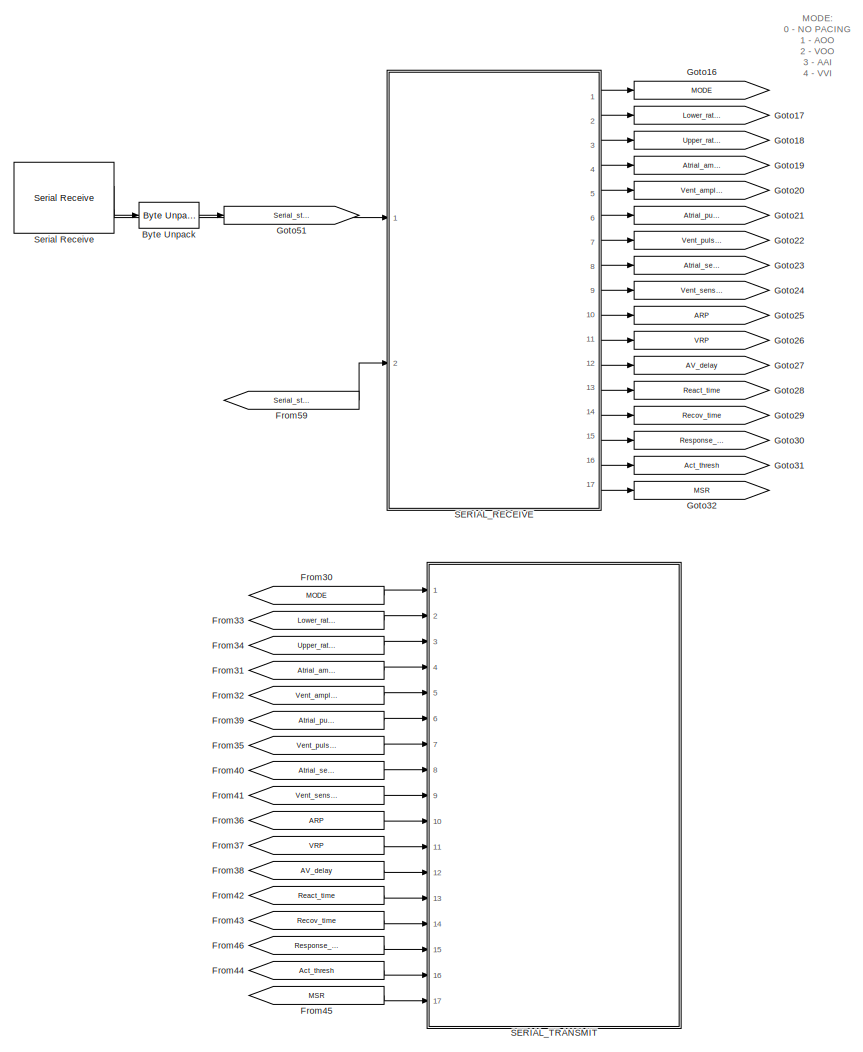
[diagram: root canvas - part 1/3, left side, full height]
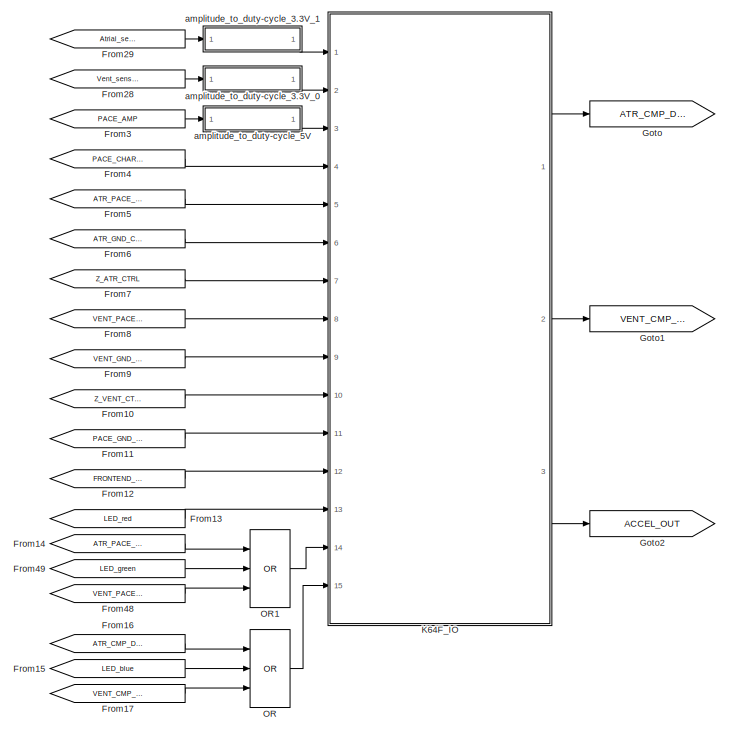
[diagram: root canvas - part 2/3, middle right region]
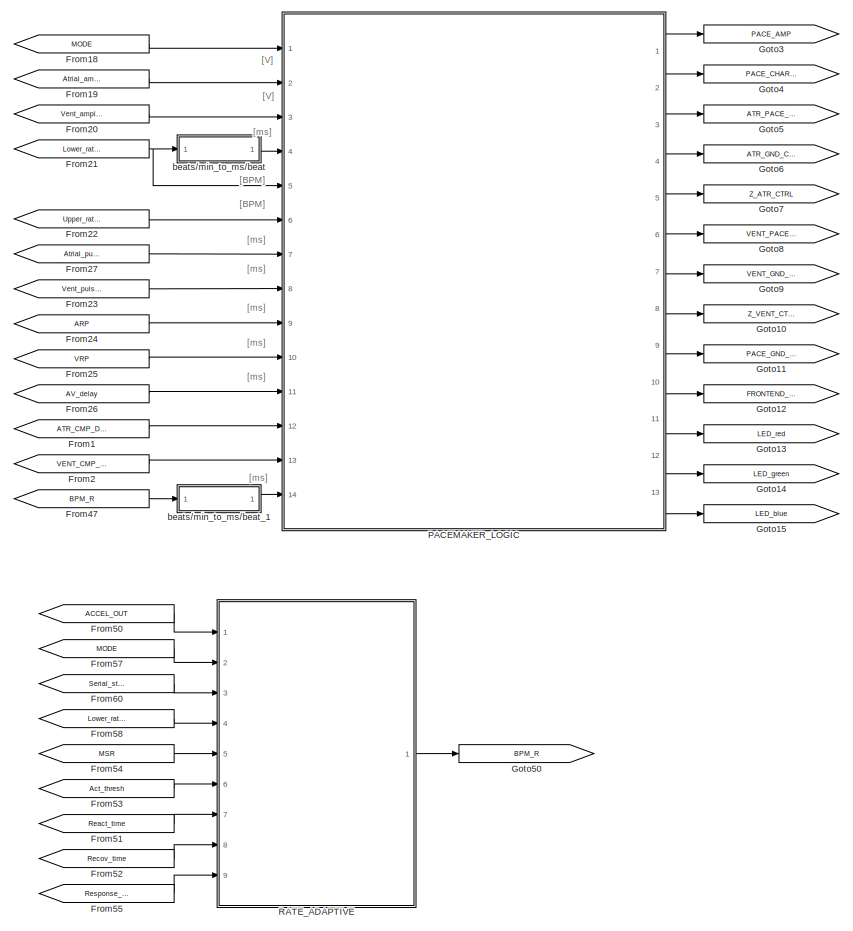
[diagram: root canvas - part 3/3, center side, full height]
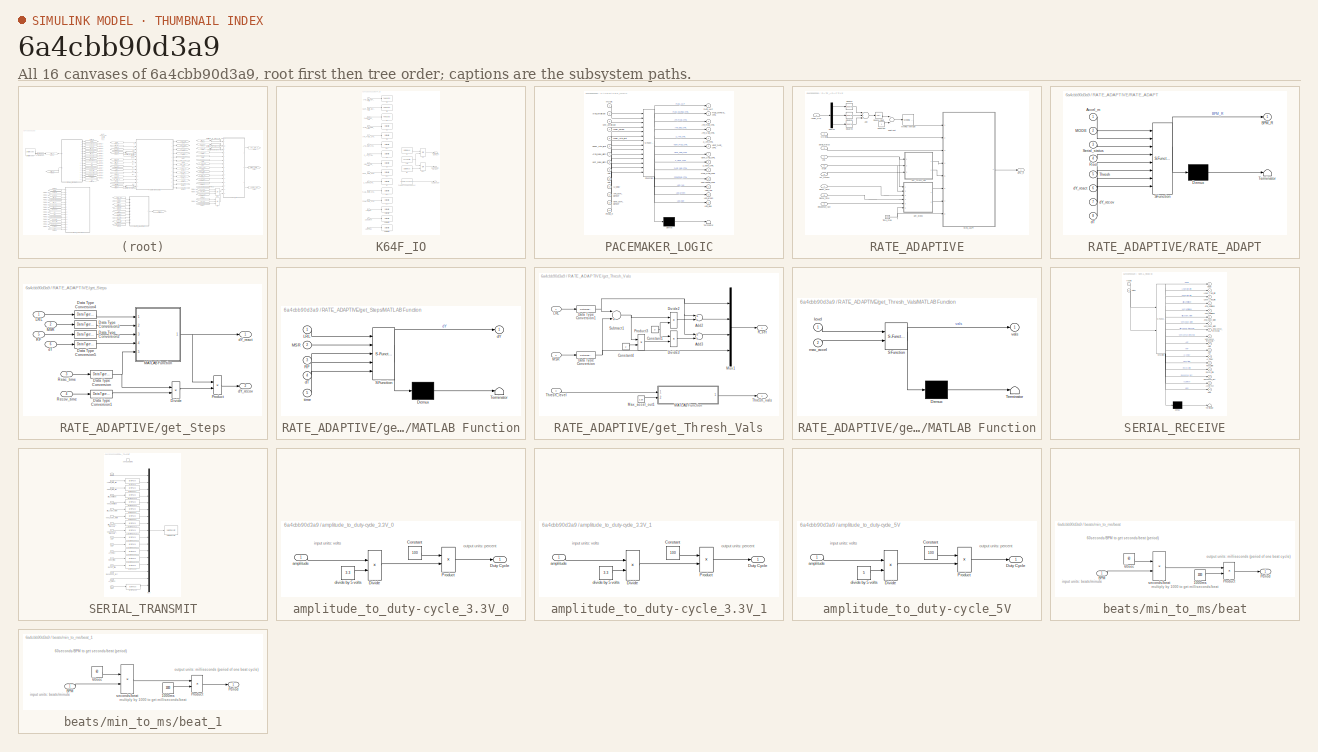
[diagram: thumbnail index - all 16 canvases of the model, root first then tree order]
MODEL slx_6a4cbb90d3a9
KIND model
CONFIG AbsTol = auto
CONFIG EnableMultiTasking = on
CONFIG FixedStep = 1e-3
CONFIG MaxStep = auto
CONFIG MinStep = auto
CONFIG RelTol = 1e-3
CONFIG SampleTimeConstraint = Unconstrained
CONFIG Solver = FixedStepAuto
CONFIG SolverName = FixedStepAuto
CONFIG StartTime = 0.0
CONFIG StopTime = inf
BLOCK [Reference] Byte Unpack  REF=etargetslib/Byte Unpack
  Ports = [1, 1]
  SourceBlock = etargetslib/Byte Unpack
  SourceProductBaseCode = ME
  SourceProductName = MATLAB Coder
  SourceType = Byte Unpack
BLOCK [From] From1
  GotoTag = ATR_CMP_DETECT
BLOCK [From] From10
  GotoTag = Z_VENT_CTRL
BLOCK [From] From11
  GotoTag = PACE_GND_CTRL
BLOCK [From] From12
  GotoTag = FRONTEND_CTRL
BLOCK [From] From13
  GotoTag = LED_red
BLOCK [From] From14
  GotoTag = ATR_PACE_CTRL
BLOCK [From] From15
  GotoTag = LED_blue
BLOCK [From] From16
  GotoTag = ATR_CMP_DETECT
BLOCK [From] From17
  GotoTag = VENT_CMP_DETECT
BLOCK [From] From18
  GotoTag = MODE
BLOCK [From] From19
  GotoTag = Atrial_amplitude
BLOCK [From] From2
  GotoTag = VENT_CMP_DETECT
BLOCK [From] From20
  GotoTag = Vent_amplitude
BLOCK [From] From21
  GotoTag = Lower_rate_limit
BLOCK [From] From22
  GotoTag = Upper_rate_limit
BLOCK [From] From23
  GotoTag = Vent_pulse_width
BLOCK [From] From24
  GotoTag = ARP
BLOCK [From] From25
  GotoTag = VRP
BLOCK [From] From26
  GotoTag = AV_delay
BLOCK [From] From27
  GotoTag = Atrial_pulse_width
BLOCK [From] From28
  GotoTag = Vent_sense_threshold
BLOCK [From] From29
  GotoTag = Atrial_sense_threshold
BLOCK [From] From3
  GotoTag = PACE_AMP
BLOCK [From] From30
  GotoTag = MODE
BLOCK [From] From31
  GotoTag = Atrial_amplitude
BLOCK [From] From32
  GotoTag = Vent_amplitude
BLOCK [From] From33
  GotoTag = Lower_rate_limit
BLOCK [From] From34
  GotoTag = Upper_rate_limit
BLOCK [From] From35
  GotoTag = Vent_pulse_width
BLOCK [From] From36
  GotoTag = ARP
BLOCK [From] From37
  GotoTag = VRP
BLOCK [From] From38
  GotoTag = AV_delay
BLOCK [From] From39
  GotoTag = Atrial_pulse_width
BLOCK [From] From4
  GotoTag = PACE_CHARGE_CTRL
BLOCK [From] From40
  GotoTag = Atrial_sense_threshold
BLOCK [From] From41
  GotoTag = Vent_sense_threshold
BLOCK [From] From42
  GotoTag = React_time
BLOCK [From] From43
  GotoTag = Recov_time
BLOCK [From] From44
  GotoTag = Act_thresh
BLOCK [From] From45
  GotoTag = MSR
BLOCK [From] From46
  GotoTag = Response_fact
BLOCK [From] From47
  GotoTag = BPM_R
BLOCK [From] From48
  GotoTag = VENT_PACE_CTRL
BLOCK [From] From49
  GotoTag = LED_green
BLOCK [From] From5
  GotoTag = ATR_PACE_CTRL
BLOCK [From] From50
  GotoTag = ACCEL_OUT
BLOCK [From] From51
  GotoTag = React_time
BLOCK [From] From52
  GotoTag = Recov_time
BLOCK [From] From53
  GotoTag = Act_thresh
BLOCK [From] From54
  GotoTag = MSR
BLOCK [From] From55
  GotoTag = Response_fact
BLOCK [From] From57
  GotoTag = MODE
BLOCK [From] From58
  GotoTag = Lower_rate_limit
BLOCK [From] From59
  GotoTag = Serial_status
BLOCK [From] From6
  GotoTag = ATR_GND_CTRL
BLOCK [From] From60
  GotoTag = Serial_status
BLOCK [From] From7
  GotoTag = Z_ATR_CTRL
BLOCK [From] From8
  GotoTag = VENT_PACE_CTRL
BLOCK [From] From9
  GotoTag = VENT_GND_CTRL
BLOCK [Goto] Goto
  GotoTag = ATR_CMP_DETECT
BLOCK [Goto] Goto1
  GotoTag = VENT_CMP_DETECT
BLOCK [Goto] Goto10
  GotoTag = Z_VENT_CTRL
BLOCK [Goto] Goto11
  GotoTag = PACE_GND_CTRL
BLOCK [Goto] Goto12
  GotoTag = FRONTEND_CTRL
BLOCK [Goto] Goto13
  GotoTag = LED_red
BLOCK [Goto] Goto14
  GotoTag = LED_green
BLOCK [Goto] Goto15
  GotoTag = LED_blue
BLOCK [Goto] Goto16
  GotoTag = MODE
BLOCK [Goto] Goto17
  GotoTag = Lower_rate_limit
BLOCK [Goto] Goto18
  GotoTag = Upper_rate_limit
BLOCK [Goto] Goto19
  GotoTag = Atrial_amplitude
BLOCK [Goto] Goto2
  GotoTag = ACCEL_OUT
BLOCK [Goto] Goto20
  GotoTag = Vent_amplitude
BLOCK [Goto] Goto21
  GotoTag = Atrial_pulse_width
BLOCK [Goto] Goto22
  GotoTag = Vent_pulse_width
BLOCK [Goto] Goto23
  GotoTag = Atrial_sense_threshold
BLOCK [Goto] Goto24
  GotoTag = Vent_sense_threshold
BLOCK [Goto] Goto25
  GotoTag = ARP
BLOCK [Goto] Goto26
  GotoTag = VRP
BLOCK [Goto] Goto27
  GotoTag = AV_delay
BLOCK [Goto] Goto28
  GotoTag = React_time
BLOCK [Goto] Goto29
  GotoTag = Recov_time
BLOCK [Goto] Goto3
  GotoTag = PACE_AMP
BLOCK [Goto] Goto30
  GotoTag = Response_fact
BLOCK [Goto] Goto31
  GotoTag = Act_thresh
BLOCK [Goto] Goto32
  GotoTag = MSR
BLOCK [Goto] Goto4
  GotoTag = PACE_CHARGE_CTRL
BLOCK [Goto] Goto5
  GotoTag = ATR_PACE_CTRL
BLOCK [Goto] Goto50
  GotoTag = BPM_R
BLOCK [Goto] Goto51
  GotoTag = Serial_status
BLOCK [Goto] Goto6
  GotoTag = ATR_GND_CTRL
BLOCK [Goto] Goto7
  GotoTag = Z_ATR_CTRL
BLOCK [Goto] Goto8
  GotoTag = VENT_PACE_CTRL
BLOCK [Goto] Goto9
  GotoTag = VENT_GND_CTRL
BLOCK [SubSystem] K64F_IO
  Ports = [15, 3]
  RequestExecContextInheritance = off
BLOCK [Outport] K64F_IO/ACCEL_OUT
  IconDisplay = Port number
  OutDataTypeStr = double
  Port = 3
BLOCK [Outport] K64F_IO/ATR_CMP_DETECT
  IconDisplay = Port number
  OutDataTypeStr = boolean
BLOCK [Inport] K64F_IO/ATR_CMP_REF_PWM
  IconDisplay = Port number
  OutDataTypeStr = uint8
BLOCK [Inport] K64F_IO/ATR_GND_CTRL
  IconDisplay = Port number
  OutDataTypeStr = boolean
  Port = 6
BLOCK [Inport] K64F_IO/ATR_PACE_CTRL
  IconDisplay = Port number
  OutDataTypeStr = boolean
  Port = 5
BLOCK [Reference] K64F_IO/D0  REF=frdmk64flib/Digital Read
  Ports = [0, 1]
  SourceBlock = frdmk64flib/Digital Read
  SourceProductBaseCode = EC_FRDM_K64F
  SourceProductName = Simulink Coder Support Package for NXP FRDM-K64F Board
  SourceType = freedomk64f.DigitalRead
BLOCK [Reference] K64F_IO/D1  REF=frdmk64flib/Digital Read
  Ports = [0, 1]
  SourceBlock = frdmk64flib/Digital Read
  SourceProductBaseCode = EC_FRDM_K64F
  SourceProductName = Simulink Coder Support Package for NXP FRDM-K64F Board
  SourceType = freedomk64f.DigitalRead
BLOCK [Reference] K64F_IO/D10  REF=frdmk64flib/Digital Write
  Ports = [1]
  SourceBlock = frdmk64flib/Digital Write
  SourceProductBaseCode = EC_FRDM_K64F
  SourceProductName = Simulink Coder Support Package for NXP FRDM-K64F Board
  SourceType = freedomk64f.DigitalWrite
BLOCK [Reference] K64F_IO/D11  REF=frdmk64flib/Digital Write
  Ports = [1]
  SourceBlock = frdmk64flib/Digital Write
  SourceProductBaseCode = EC_FRDM_K64F
  SourceProductName = Simulink Coder Support Package for NXP FRDM-K64F Board
  SourceType = freedomk64f.DigitalWrite
BLOCK [Reference] K64F_IO/D12  REF=frdmk64flib/Digital Write
  Ports = [1]
  SourceBlock = frdmk64flib/Digital Write
  SourceProductBaseCode = EC_FRDM_K64F
  SourceProductName = Simulink Coder Support Package for NXP FRDM-K64F Board
  SourceType = freedomk64f.DigitalWrite
BLOCK [Reference] K64F_IO/D13  REF=frdmk64flib/Digital Write
  Ports = [1]
  SourceBlock = frdmk64flib/Digital Write
  SourceProductBaseCode = EC_FRDM_K64F
  SourceProductName = Simulink Coder Support Package for NXP FRDM-K64F Board
  SourceType = freedomk64f.DigitalWrite
BLOCK [Reference] K64F_IO/D2  REF=frdmk64flib/Digital Write
  Ports = [1]
  SourceBlock = frdmk64flib/Digital Write
  SourceProductBaseCode = EC_FRDM_K64F
  SourceProductName = Simulink Coder Support Package for NXP FRDM-K64F Board
  SourceType = freedomk64f.DigitalWrite
BLOCK [Reference] K64F_IO/D3  REF=frdmk64flib/PWM Output
  Ports = [1]
  SourceBlock = frdmk64flib/PWM Output
  SourceProductBaseCode = EC_FRDM_K64F
  SourceProductName = Simulink Coder Support Package for NXP FRDM-K64F Board
  SourceType = freedomk64f.PWMOutput
BLOCK [Reference] K64F_IO/D4  REF=frdmk64flib/Digital Write
  Ports = [1]
  SourceBlock = frdmk64flib/Digital Write
  SourceProductBaseCode = EC_FRDM_K64F
  SourceProductName = Simulink Coder Support Package for NXP FRDM-K64F Board
  SourceType = freedomk64f.DigitalWrite
BLOCK [Reference] K64F_IO/D5  REF=frdmk64flib/PWM Output
  Ports = [1]
  SourceBlock = frdmk64flib/PWM Output
  SourceProductBaseCode = EC_FRDM_K64F
  SourceProductName = Simulink Coder Support Package for NXP FRDM-K64F Board
  SourceType = freedomk64f.PWMOutput
BLOCK [Reference] K64F_IO/D6  REF=frdmk64flib/PWM Output
  Ports = [1]
  SourceBlock = frdmk64flib/PWM Output
  SourceProductBaseCode = EC_FRDM_K64F
  SourceProductName = Simulink Coder Support Package for NXP FRDM-K64F Board
  SourceType = freedomk64f.PWMOutput
BLOCK [Reference] K64F_IO/D7  REF=frdmk64flib/Digital Write
  Ports = [1]
  SourceBlock = frdmk64flib/Digital Write
  SourceProductBaseCode = EC_FRDM_K64F
  SourceProductName = Simulink Coder Support Package for NXP FRDM-K64F Board
  SourceType = freedomk64f.DigitalWrite
BLOCK [Reference] K64F_IO/D8  REF=frdmk64flib/Digital Write
  Ports = [1]
  SourceBlock = frdmk64flib/Digital Write
  SourceProductBaseCode = EC_FRDM_K64F
  SourceProductName = Simulink Coder Support Package for NXP FRDM-K64F Board
  SourceType = freedomk64f.DigitalWrite
BLOCK [Reference] K64F_IO/D9  REF=frdmk64flib/Digital Write
  Ports = [1]
  SourceBlock = frdmk64flib/Digital Write
  SourceProductBaseCode = EC_FRDM_K64F
  SourceProductName = Simulink Coder Support Package for NXP FRDM-K64F Board
  SourceType = freedomk64f.DigitalWrite
BLOCK [Reference] K64F_IO/Digital Write  REF=frdmk64flib/Digital Write
  Ports = [1]
  SourceBlock = frdmk64flib/Digital Write
  SourceProductBaseCode = EC_FRDM_K64F
  SourceProductName = Simulink Coder Support Package for NXP FRDM-K64F Board
  SourceType = freedomk64f.DigitalWrite
BLOCK [Reference] K64F_IO/Digital Write1  REF=frdmk64flib/Digital Write
  Ports = [1]
  SourceBlock = frdmk64flib/Digital Write
  SourceProductBaseCode = EC_FRDM_K64F
  SourceProductName = Simulink Coder Support Package for NXP FRDM-K64F Board
  SourceType = freedomk64f.DigitalWrite
BLOCK [Reference] K64F_IO/Digital Write2  REF=frdmk64flib/Digital Write
  Ports = [1]
  SourceBlock = frdmk64flib/Digital Write
  SourceProductBaseCode = EC_FRDM_K64F
  SourceProductName = Simulink Coder Support Package for NXP FRDM-K64F Board
  SourceType = freedomk64f.DigitalWrite
BLOCK [Inport] K64F_IO/FRONTEND_CTRL
  IconDisplay = Port number
  OutDataTypeStr = boolean
  Port = 12
BLOCK [Reference] K64F_IO/FXOS8700 6-Axes Sensor  REF=frdmk64flib/FXOS8700 6-Axes Sensor
  Ports = [0, 1]
  SourceBlock = frdmk64flib/FXOS8700 6-Axes Sensor
  SourceProductBaseCode = EC_FRDM_K64F
  SourceProductName = Simulink Coder Support Package for NXP FRDM-K64F Board
  SourceType = freedomk64f.fxos8700
BLOCK [Inport] K64F_IO/LED_blue
  IconDisplay = Port number
  OutDataTypeStr = boolean
  Port = 15
BLOCK [Inport] K64F_IO/LED_green
  IconDisplay = Port number
  OutDataTypeStr = boolean
  Port = 14
BLOCK [Inport] K64F_IO/LED_red
  IconDisplay = Port number
  OutDataTypeStr = boolean
  Port = 13
BLOCK [Logic] K64F_IO/OR
  AllPortsSameDT = off
  IconShape = distinctive
  Operator = OR
  OutDataTypeStr = boolean
  Ports = [2, 1]
BLOCK [Logic] K64F_IO/OR1
  AllPortsSameDT = off
  IconShape = distinctive
  Operator = OR
  OutDataTypeStr = boolean
  Ports = [2, 1]
BLOCK [Inport] K64F_IO/PACE_CHARGE_CTRL
  IconDisplay = Port number
  OutDataTypeStr = boolean
  Port = 4
BLOCK [Inport] K64F_IO/PACE_GND_CTRL
  IconDisplay = Port number
  OutDataTypeStr = boolean
  Port = 11
BLOCK [Inport] K64F_IO/PACING_REF_PWM
  IconDisplay = Port number
  OutDataTypeStr = uint8
  Port = 3
BLOCK [Reference] K64F_IO/SW2  REF=frdmk64flib/Push Button
  Ports = [0, 1]
  SourceBlock = frdmk64flib/Push Button
  SourceProductBaseCode = EC_FRDM_K64F
  SourceProductName = Simulink Coder Support Package for NXP FRDM-K64F Board
  SourceType = freedomk64f.PushButton
BLOCK [Outport] K64F_IO/VENT_CMP_DETECT
  IconDisplay = Port number
  OutDataTypeStr = boolean
  Port = 2
BLOCK [Inport] K64F_IO/VENT_CMP_REF_PWM
  IconDisplay = Port number
  OutDataTypeStr = uint8
  Port = 2
BLOCK [Inport] K64F_IO/VENT_GND_CTRL
  IconDisplay = Port number
  OutDataTypeStr = boolean
  Port = 9
BLOCK [Inport] K64F_IO/VENT_PACE_CTRL
  IconDisplay = Port number
  OutDataTypeStr = boolean
  Port = 8
BLOCK [Inport] K64F_IO/Z_ATR_CTRL
  IconDisplay = Port number
  OutDataTypeStr = boolean
  Port = 7
BLOCK [Inport] K64F_IO/Z_VENT_CTRL
  IconDisplay = Port number
  OutDataTypeStr = boolean
  Port = 10
BLOCK [Logic] OR
  AllPortsSameDT = off
  IconShape = distinctive
  Inputs = 3
  Operator = OR
  OutDataTypeStr = boolean
  Ports = [3, 1]
BLOCK [Logic] OR1
  AllPortsSameDT = off
  IconShape = distinctive
  Inputs = 3
  Operator = OR
  OutDataTypeStr = boolean
  Ports = [3, 1]
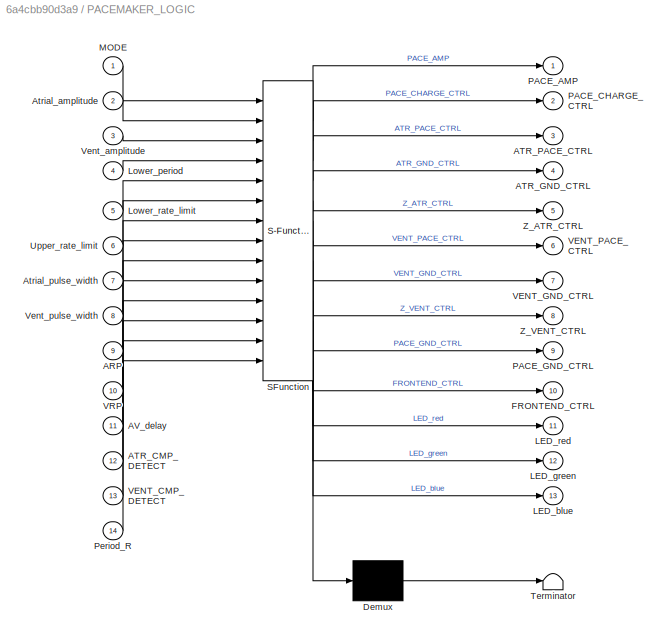
BLOCK [SubSystem] PACEMAKER_LOGIC
  BlockKeywords = __PRM__SERIALIZED__DATA__:Stateflow Chart,Stateflow Diagram
  ErrorFcn = Stateflow.Translate.translate
  PermitHierarchicalResolution = ExplicitOnly
  Ports = [14, 13]
  RequestExecContextInheritance = off
  SFBlockType = Chart
  TreatAsAtomicUnit = on
BLOCK [Demux] PACEMAKER_LOGIC/ Demux 
  Outputs = 1
  Ports = [1, 1]
BLOCK [S-Function] PACEMAKER_LOGIC/ SFunction 
  EnableBusSupport = on
  FunctionName = sf_sfun
  PortCounts = [14 14]
  Ports = [14, 14]
  SFcnIsStateOwnerBlock = off
  SFunctionDeploymentMode = off
  Tag = Stateflow S-Function Pacemaker_model_assgn2 3
BLOCK [Terminator] PACEMAKER_LOGIC/ Terminator 
BLOCK [Inport] PACEMAKER_LOGIC/ARP
  IconDisplay = Port number
  Port = 9
BLOCK [Inport] PACEMAKER_LOGIC/ATR_CMP_DETECT
  IconDisplay = Port number
  Port = 12
BLOCK [Outport] PACEMAKER_LOGIC/ATR_GND_CTRL
  IconDisplay = Port number
  Port = 4
BLOCK [Outport] PACEMAKER_LOGIC/ATR_PACE_CTRL
  IconDisplay = Port number
  Port = 3
BLOCK [Inport] PACEMAKER_LOGIC/AV_delay
  IconDisplay = Port number
  Port = 11
BLOCK [Inport] PACEMAKER_LOGIC/Atrial_amplitude
  IconDisplay = Port number
  Port = 2
BLOCK [Inport] PACEMAKER_LOGIC/Atrial_pulse_width
  IconDisplay = Port number
  Port = 7
BLOCK [Outport] PACEMAKER_LOGIC/FRONTEND_CTRL
  IconDisplay = Port number
  Port = 10
BLOCK [Outport] PACEMAKER_LOGIC/LED_blue
  IconDisplay = Port number
  Port = 13
BLOCK [Outport] PACEMAKER_LOGIC/LED_green
  IconDisplay = Port number
  Port = 12
BLOCK [Outport] PACEMAKER_LOGIC/LED_red
  IconDisplay = Port number
  Port = 11
BLOCK [Inport] PACEMAKER_LOGIC/Lower_period
  IconDisplay = Port number
  Port = 4
BLOCK [Inport] PACEMAKER_LOGIC/Lower_rate_limit
  IconDisplay = Port number
  Port = 5
BLOCK [Inport] PACEMAKER_LOGIC/MODE
  IconDisplay = Port number
BLOCK [Outport] PACEMAKER_LOGIC/PACE_AMP
  IconDisplay = Port number
BLOCK [Outport] PACEMAKER_LOGIC/PACE_CHARGE_CTRL
  IconDisplay = Port number
  Port = 2
BLOCK [Outport] PACEMAKER_LOGIC/PACE_GND_CTRL
  IconDisplay = Port number
  Port = 9
BLOCK [Inport] PACEMAKER_LOGIC/Period_R
  IconDisplay = Port number
  Port = 14
BLOCK [Inport] PACEMAKER_LOGIC/Upper_rate_limit
  IconDisplay = Port number
  Port = 6
BLOCK [Inport] PACEMAKER_LOGIC/VENT_CMP_DETECT
  IconDisplay = Port number
  Port = 13
BLOCK [Outport] PACEMAKER_LOGIC/VENT_GND_CTRL
  IconDisplay = Port number
  Port = 7
BLOCK [Outport] PACEMAKER_LOGIC/VENT_PACE_CTRL
  IconDisplay = Port number
  Port = 6
BLOCK [Inport] PACEMAKER_LOGIC/VRP
  IconDisplay = Port number
  Port = 10
BLOCK [Inport] PACEMAKER_LOGIC/Vent_amplitude
  IconDisplay = Port number
  Port = 3
BLOCK [Inport] PACEMAKER_LOGIC/Vent_pulse_width
  IconDisplay = Port number
  Port = 8
BLOCK [Outport] PACEMAKER_LOGIC/Z_ATR_CTRL
  IconDisplay = Port number
  Port = 5
BLOCK [Outport] PACEMAKER_LOGIC/Z_VENT_CTRL
  IconDisplay = Port number
  Port = 8
BLOCK [SubSystem] RATE_ADAPTIVE
  Ports = [9, 1]
  RequestExecContextInheritance = off
BLOCK [Inport] RATE_ADAPTIVE/ACCEL_OUT
  IconDisplay = Port number
  OutDataTypeStr = double
BLOCK [Inport] RATE_ADAPTIVE/Act_thresh
  IconDisplay = Port number
  OutDataTypeStr = uint8
  Port = 6
BLOCK [Sum] RATE_ADAPTIVE/Add
  AccumDataTypeStr = double
  InputSameDT = off
  Inputs = +++
  OutDataTypeStr = double
  Ports = [3, 1]
  SaturateOnIntegerOverflow = off
BLOCK [Outport] RATE_ADAPTIVE/BPM_R
  IconDisplay = Port number
  OutDataTypeStr = double
BLOCK [Constant] RATE_ADAPTIVE/Constant
  OutDataTypeStr = double
BLOCK [Demux] RATE_ADAPTIVE/Demux
  DisplayOption = bar
  Outputs = 3
  Ports = [1, 3]
BLOCK [Inport] RATE_ADAPTIVE/LRL
  IconDisplay = Port number
  OutDataTypeStr = uint16
  Port = 4
BLOCK [Inport] RATE_ADAPTIVE/MODE
  IconDisplay = Port number
  OutDataTypeStr = uint8
  Port = 2
BLOCK [Inport] RATE_ADAPTIVE/MSR
  IconDisplay = Port number
  OutDataTypeStr = uint16
  Port = 5
BLOCK [Reference] RATE_ADAPTIVE/Moving Average  REF=dspstat3/Moving
Average
  Ports = [1, 1]
  SourceBlock = dspstat3/Moving\nAverage
  SourceProductBaseCode = DS
  SourceProductName = DSP System Toolbox
  SourceType = dsp.simulink.MovingAverage
BLOCK [SubSystem] RATE_ADAPTIVE/RATE_ADAPT
  BlockKeywords = __PRM__SERIALIZED__DATA__:Stateflow Chart,Stateflow Diagram
  ErrorFcn = Stateflow.Translate.translate
  PermitHierarchicalResolution = ExplicitOnly
  Ports = [8, 1]
  RequestExecContextInheritance = off
  SFBlockType = Chart
  TreatAsAtomicUnit = on
BLOCK [Demux] RATE_ADAPTIVE/RATE_ADAPT/ Demux 
  Outputs = 1
  Ports = [1, 1]
BLOCK [S-Function] RATE_ADAPTIVE/RATE_ADAPT/ SFunction 
  EnableBusSupport = on
  FunctionName = sf_sfun
  PortCounts = [8 2]
  Ports = [8, 2]
  SFcnIsStateOwnerBlock = off
  SFunctionDeploymentMode = off
  Tag = Stateflow S-Function Pacemaker_model_assgn2 1
BLOCK [Terminator] RATE_ADAPTIVE/RATE_ADAPT/ Terminator 
BLOCK [Inport] RATE_ADAPTIVE/RATE_ADAPT/Accel_m
  IconDisplay = Port number
BLOCK [Outport] RATE_ADAPTIVE/RATE_ADAPT/BPM_R
  IconDisplay = Port number
BLOCK [Inport] RATE_ADAPTIVE/RATE_ADAPT/MODE
  IconDisplay = Port number
  Port = 2
BLOCK [Inport] RATE_ADAPTIVE/RATE_ADAPT/Rset
  IconDisplay = Port number
  Port = 4
BLOCK [Inport] RATE_ADAPTIVE/RATE_ADAPT/Serial_status
  IconDisplay = Port number
  Port = 3
BLOCK [Inport] RATE_ADAPTIVE/RATE_ADAPT/Thresh
  IconDisplay = Port number
  Port = 5
BLOCK [Inport] RATE_ADAPTIVE/RATE_ADAPT/dT
  IconDisplay = Port number
  Port = 8
BLOCK [Inport] RATE_ADAPTIVE/RATE_ADAPT/dY_react
  IconDisplay = Port number
  Port = 6
BLOCK [Inport] RATE_ADAPTIVE/RATE_ADAPT/dY_recov
  IconDisplay = Port number
  Port = 7
BLOCK [Inport] RATE_ADAPTIVE/React_time
  IconDisplay = Port number
  OutDataTypeStr = uint16
  Port = 7
BLOCK [Inport] RATE_ADAPTIVE/Recov_time
  IconDisplay = Port number
  OutDataTypeStr = uint16
  Port = 8
BLOCK [Inport] RATE_ADAPTIVE/Response_fact
  IconDisplay = Port number
  OutDataTypeStr = uint8
  Port = 9
BLOCK [Inport] RATE_ADAPTIVE/Serial_status
  IconDisplay = Port number
  OutDataTypeStr = uint8
  Port = 3
BLOCK [Math] RATE_ADAPTIVE/Square
  Operator = square
  OutDataTypeStr = double
  Ports = [1, 1]
BLOCK [Sqrt] RATE_ADAPTIVE/Square Root
  IntermediateResultsDataTypeStr = double
  OutDataTypeStr = double
BLOCK [Math] RATE_ADAPTIVE/Square1
  Operator = square
  OutDataTypeStr = double
  Ports = [1, 1]
BLOCK [Math] RATE_ADAPTIVE/Square2
  Operator = square
  OutDataTypeStr = double
  Ports = [1, 1]
BLOCK [Sum] RATE_ADAPTIVE/Subtract
  InputSameDT = off
  Inputs = +-
  OutDataTypeStr = Inherit: Inherit via internal rule
  Ports = [2, 1]
  SaturateOnIntegerOverflow = off
BLOCK [Constant] RATE_ADAPTIVE/Time_step
  OutDataTypeStr = uint16
  Value = 100
BLOCK [SubSystem] RATE_ADAPTIVE/get_Steps
  Ports = [6, 2]
  RequestExecContextInheritance = off
BLOCK [DataTypeConversion] RATE_ADAPTIVE/get_Steps/Data Type Conversion
  OutDataTypeStr = double
  RndMeth = Floor
  SaturateOnIntegerOverflow = off
BLOCK [DataTypeConversion] RATE_ADAPTIVE/get_Steps/Data Type Conversion1
  OutDataTypeStr = double
  RndMeth = Floor
  SaturateOnIntegerOverflow = off
BLOCK [DataTypeConversion] RATE_ADAPTIVE/get_Steps/Data Type Conversion2
  OutDataTypeStr = double
  RndMeth = Floor
  SaturateOnIntegerOverflow = off
BLOCK [DataTypeConversion] RATE_ADAPTIVE/get_Steps/Data Type Conversion3
  OutDataTypeStr = double
  RndMeth = Floor
  SaturateOnIntegerOverflow = off
BLOCK [DataTypeConversion] RATE_ADAPTIVE/get_Steps/Data Type Conversion4
  OutDataTypeStr = double
  RndMeth = Floor
  SaturateOnIntegerOverflow = off
BLOCK [DataTypeConversion] RATE_ADAPTIVE/get_Steps/Data Type Conversion5
  OutDataTypeStr = double
  RndMeth = Floor
  SaturateOnIntegerOverflow = off
BLOCK [Product] RATE_ADAPTIVE/get_Steps/Divide
  InputSameDT = off
  Inputs = */
  OutDataTypeStr = Inherit: Inherit via internal rule
  Ports = [2, 1]
  RndMeth = Floor
  SaturateOnIntegerOverflow = off
BLOCK [Inport] RATE_ADAPTIVE/get_Steps/LRL
  IconDisplay = Port number
  OutDataTypeStr = uint16
BLOCK [SubSystem] RATE_ADAPTIVE/get_Steps/MATLAB Function
  ErrorFcn = Stateflow.Translate.translate
  PermitHierarchicalResolution = ExplicitOnly
  Ports = [5, 1]
  RequestExecContextInheritance = off
  SFBlockType = MATLAB Function
  TreatAsAtomicUnit = on
BLOCK [Demux] RATE_ADAPTIVE/get_Steps/MATLAB Function/ Demux 
  Outputs = 1
  Ports = [1, 1]
BLOCK [S-Function] RATE_ADAPTIVE/get_Steps/MATLAB Function/ SFunction 
  EnableBusSupport = on
  FunctionName = sf_sfun
  PortCounts = [5 2]
  Ports = [5, 2]
  SFcnIsStateOwnerBlock = off
  SFunctionDeploymentMode = off
  Tag = Stateflow S-Function Pacemaker_model_assgn2 4
BLOCK [Terminator] RATE_ADAPTIVE/get_Steps/MATLAB Function/ Terminator 
BLOCK [Inport] RATE_ADAPTIVE/get_Steps/MATLAB Function/LRL
  IconDisplay = Port number
BLOCK [Inport] RATE_ADAPTIVE/get_Steps/MATLAB Function/MSR
  IconDisplay = Port number
  Port = 2
BLOCK [Inport] RATE_ADAPTIVE/get_Steps/MATLAB Function/RF
  IconDisplay = Port number
  Port = 3
BLOCK [Inport] RATE_ADAPTIVE/get_Steps/MATLAB Function/dT
  IconDisplay = Port number
  Port = 4
BLOCK [Outport] RATE_ADAPTIVE/get_Steps/MATLAB Function/dY
  IconDisplay = Port number
BLOCK [Inport] RATE_ADAPTIVE/get_Steps/MATLAB Function/time
  IconDisplay = Port number
  Port = 5
BLOCK [Inport] RATE_ADAPTIVE/get_Steps/MSR
  IconDisplay = Port number
  OutDataTypeStr = uint16
  Port = 2
BLOCK [Product] RATE_ADAPTIVE/get_Steps/Product
  InputSameDT = off
  OutDataTypeStr = double
  Ports = [2, 1]
  RndMeth = Round
  SaturateOnIntegerOverflow = off
BLOCK [Inport] RATE_ADAPTIVE/get_Steps/RF
  IconDisplay = Port number
  OutDataTypeStr = uint8
  Port = 5
BLOCK [Inport] RATE_ADAPTIVE/get_Steps/Reac_time
  IconDisplay = Port number
  OutDataTypeStr = uint16
  Port = 3
BLOCK [Inport] RATE_ADAPTIVE/get_Steps/Recov_time
  IconDisplay = Port number
  OutDataTypeStr = uint16
  Port = 4
BLOCK [Inport] RATE_ADAPTIVE/get_Steps/dT
  IconDisplay = Port number
  OutDataTypeStr = uint16
  Port = 6
BLOCK [Outport] RATE_ADAPTIVE/get_Steps/dY_react
  IconDisplay = Port number
  OutDataTypeStr = double
BLOCK [Outport] RATE_ADAPTIVE/get_Steps/dY_recov
  IconDisplay = Port number
  OutDataTypeStr = double
  Port = 2
BLOCK [SubSystem] RATE_ADAPTIVE/get_Thresh_Vals
  Ports = [3, 2]
  RequestExecContextInheritance = off
BLOCK [Sum] RATE_ADAPTIVE/get_Thresh_Vals/Add2
  AccumDataTypeStr = double
  InputSameDT = off
  OutDataTypeStr = double
  Ports = [2, 1]
  SaturateOnIntegerOverflow = off
BLOCK [Sum] RATE_ADAPTIVE/get_Thresh_Vals/Add3
  AccumDataTypeStr = double
  InputSameDT = off
  OutDataTypeStr = double
  Ports = [2, 1]
  SaturateOnIntegerOverflow = off
BLOCK [Constant] RATE_ADAPTIVE/get_Thresh_Vals/Constant1
  OutDataTypeStr = double
  Value = 3
BLOCK [Constant] RATE_ADAPTIVE/get_Thresh_Vals/Constant4
  OutDataTypeStr = double
  Value = 2
BLOCK [DataTypeConversion] RATE_ADAPTIVE/get_Thresh_Vals/Data Type Conversion
  OutDataTypeStr = double
  RndMeth = Floor
  SaturateOnIntegerOverflow = off
BLOCK [DataTypeConversion] RATE_ADAPTIVE/get_Thresh_Vals/Data Type Conversion1
  OutDataTypeStr = double
  RndMeth = Floor
  SaturateOnIntegerOverflow = off
BLOCK [Product] RATE_ADAPTIVE/get_Thresh_Vals/Divide2
  InputSameDT = off
  Inputs = */
  OutDataTypeStr = double
  Ports = [2, 1]
  RndMeth = Floor
  SaturateOnIntegerOverflow = off
BLOCK [Product] RATE_ADAPTIVE/get_Thresh_Vals/Divide3
  InputSameDT = off
  Inputs = /*
  OutDataTypeStr = double
  Ports = [2, 1]
  RndMeth = Floor
  SaturateOnIntegerOverflow = off
BLOCK [Inport] RATE_ADAPTIVE/get_Thresh_Vals/LRL
  IconDisplay = Port number
  OutDataTypeStr = uint16
BLOCK [SubSystem] RATE_ADAPTIVE/get_Thresh_Vals/MATLAB Function
  ErrorFcn = Stateflow.Translate.translate
  PermitHierarchicalResolution = ExplicitOnly
  Ports = [2, 1]
  RequestExecContextInheritance = off
  SFBlockType = MATLAB Function
  TreatAsAtomicUnit = on
BLOCK [Demux] RATE_ADAPTIVE/get_Thresh_Vals/MATLAB Function/ Demux 
  Outputs = 1
  Ports = [1, 1]
BLOCK [S-Function] RATE_ADAPTIVE/get_Thresh_Vals/MATLAB Function/ SFunction 
  EnableBusSupport = on
  FunctionName = sf_sfun
  PortCounts = [2 2]
  Ports = [2, 2]
  SFcnIsStateOwnerBlock = off
  SFunctionDeploymentMode = off
  Tag = Stateflow S-Function Pacemaker_model_assgn2 5
BLOCK [Terminator] RATE_ADAPTIVE/get_Thresh_Vals/MATLAB Function/ Terminator 
BLOCK [Inport] RATE_ADAPTIVE/get_Thresh_Vals/MATLAB Function/level
  IconDisplay = Port number
BLOCK [Inport] RATE_ADAPTIVE/get_Thresh_Vals/MATLAB Function/max_accel
  IconDisplay = Port number
  Port = 2
BLOCK [Outport] RATE_ADAPTIVE/get_Thresh_Vals/MATLAB Function/vals
  IconDisplay = Port number
BLOCK [Inport] RATE_ADAPTIVE/get_Thresh_Vals/MSR
  IconDisplay = Port number
  OutDataTypeStr = uint16
  Port = 2
BLOCK [Constant] RATE_ADAPTIVE/get_Thresh_Vals/Max_accel_out1
  OutDataTypeStr = double
  Value = 2.25
BLOCK [Mux] RATE_ADAPTIVE/get_Thresh_Vals/Mux1
  DisplayOption = bar
  Ports = [4, 1]
BLOCK [Product] RATE_ADAPTIVE/get_Thresh_Vals/Product3
  InputSameDT = off
  OutDataTypeStr = double
  Ports = [2, 1]
  RndMeth = Floor
  SaturateOnIntegerOverflow = off
BLOCK [Outport] RATE_ADAPTIVE/get_Thresh_Vals/R_set
  IconDisplay = Port number
  OutDataTypeStr = double
BLOCK [Sum] RATE_ADAPTIVE/get_Thresh_Vals/Subtract1
  AccumDataTypeStr = double
  InputSameDT = off
  Inputs = -+
  OutDataTypeStr = double
  Ports = [2, 1]
  SaturateOnIntegerOverflow = off
BLOCK [Inport] RATE_ADAPTIVE/get_Thresh_Vals/Thresh_level
  IconDisplay = Port number
  OutDataTypeStr = uint8
  Port = 3
BLOCK [Outport] RATE_ADAPTIVE/get_Thresh_Vals/Thresh_vals
  IconDisplay = Port number
  OutDataTypeStr = double
  Port = 2
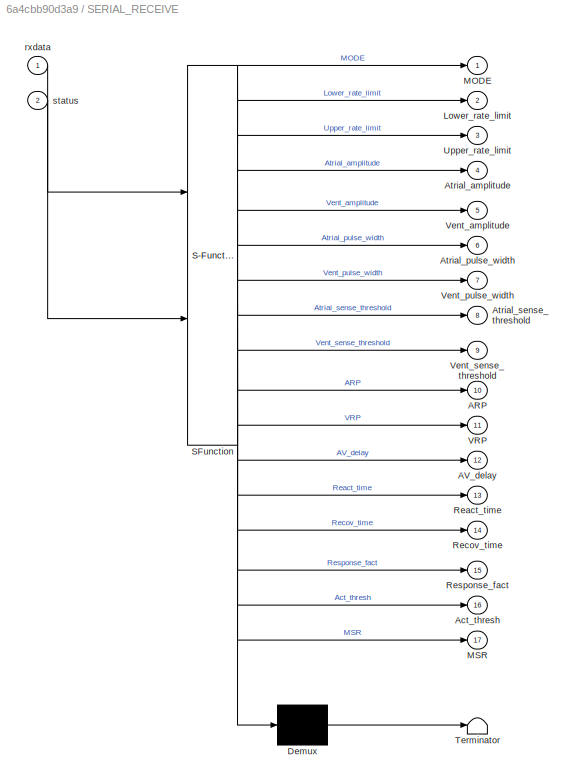
BLOCK [SubSystem] SERIAL_RECEIVE
  BlockKeywords = __PRM__SERIALIZED__DATA__:Stateflow Chart,Stateflow Diagram
  ErrorFcn = Stateflow.Translate.translate
  PermitHierarchicalResolution = ExplicitOnly
  Ports = [2, 17]
  RequestExecContextInheritance = off
  SFBlockType = Chart
  TreatAsAtomicUnit = on
BLOCK [Demux] SERIAL_RECEIVE/ Demux 
  Outputs = 1
  Ports = [1, 1]
BLOCK [S-Function] SERIAL_RECEIVE/ SFunction 
  EnableBusSupport = on
  FunctionName = sf_sfun
  PortCounts = [2 18]
  Ports = [2, 18]
  SFcnIsStateOwnerBlock = off
  SFunctionDeploymentMode = off
  Tag = Stateflow S-Function Pacemaker_model_assgn2 2
BLOCK [Terminator] SERIAL_RECEIVE/ Terminator 
BLOCK [Outport] SERIAL_RECEIVE/ARP
  IconDisplay = Port number
  Port = 10
BLOCK [Outport] SERIAL_RECEIVE/AV_delay
  IconDisplay = Port number
  Port = 12
BLOCK [Outport] SERIAL_RECEIVE/Act_thresh
  IconDisplay = Port number
  Port = 16
BLOCK [Outport] SERIAL_RECEIVE/Atrial_amplitude
  IconDisplay = Port number
  Port = 4
BLOCK [Outport] SERIAL_RECEIVE/Atrial_pulse_width
  IconDisplay = Port number
  Port = 6
BLOCK [Outport] SERIAL_RECEIVE/Atrial_sense_threshold
  IconDisplay = Port number
  Port = 8
BLOCK [Outport] SERIAL_RECEIVE/Lower_rate_limit
  IconDisplay = Port number
  Port = 2
BLOCK [Outport] SERIAL_RECEIVE/MODE
  IconDisplay = Port number
BLOCK [Outport] SERIAL_RECEIVE/MSR
  IconDisplay = Port number
  Port = 17
BLOCK [Outport] SERIAL_RECEIVE/React_time
  IconDisplay = Port number
  Port = 13
BLOCK [Outport] SERIAL_RECEIVE/Recov_time
  IconDisplay = Port number
  Port = 14
BLOCK [Outport] SERIAL_RECEIVE/Response_fact
  IconDisplay = Port number
  Port = 15
BLOCK [Outport] SERIAL_RECEIVE/Upper_rate_limit
  IconDisplay = Port number
  Port = 3
BLOCK [Outport] SERIAL_RECEIVE/VRP
  IconDisplay = Port number
  Port = 11
BLOCK [Outport] SERIAL_RECEIVE/Vent_amplitude
  IconDisplay = Port number
  Port = 5
BLOCK [Outport] SERIAL_RECEIVE/Vent_pulse_width
  IconDisplay = Port number
  Port = 7
BLOCK [Outport] SERIAL_RECEIVE/Vent_sense_threshold
  IconDisplay = Port number
  Port = 9
BLOCK [Inport] SERIAL_RECEIVE/rxdata
  IconDisplay = Port number
BLOCK [Inport] SERIAL_RECEIVE/status
  IconDisplay = Port number
  Port = 2
BLOCK [SubSystem] SERIAL_TRANSMIT
  Ports = [17, 0, 0, 1]
  RequestExecContextInheritance = off
  TreatAsAtomicUnit = on
BLOCK [Inport] SERIAL_TRANSMIT/ARP
  IconDisplay = Port number
  Port = 10
BLOCK [Inport] SERIAL_TRANSMIT/AV_delay
  IconDisplay = Port number
  Port = 12
BLOCK [Inport] SERIAL_TRANSMIT/Act_thresh
  IconDisplay = Port number
  Port = 16
BLOCK [Inport] SERIAL_TRANSMIT/Atrial_amplitude
  IconDisplay = Port number
  Port = 4
BLOCK [Inport] SERIAL_TRANSMIT/Atrial_pulse_width
  IconDisplay = Port number
  Port = 6
BLOCK [Inport] SERIAL_TRANSMIT/Atrial_sense_threshold
  IconDisplay = Port number
  Port = 8
BLOCK [Reference] SERIAL_TRANSMIT/Byte Pack  REF=etargetslib/Byte Pack
  Ports = [1, 1]
  SourceBlock = etargetslib/Byte Pack
  SourceProductBaseCode = ME
  SourceProductName = MATLAB Coder
  SourceType = Byte pack
BLOCK [Reference] SERIAL_TRANSMIT/Byte Pack1  REF=etargetslib/Byte Pack
  Ports = [1, 1]
  SourceBlock = etargetslib/Byte Pack
  SourceProductBaseCode = ME
  SourceProductName = MATLAB Coder
  SourceType = Byte pack
BLOCK [Reference] SERIAL_TRANSMIT/Byte Pack10  REF=etargetslib/Byte Pack
  Ports = [1, 1]
  SourceBlock = etargetslib/Byte Pack
  SourceProductBaseCode = ME
  SourceProductName = MATLAB Coder
  SourceType = Byte pack
BLOCK [Reference] SERIAL_TRANSMIT/Byte Pack11  REF=etargetslib/Byte Pack
  Ports = [1, 1]
  SourceBlock = etargetslib/Byte Pack
  SourceProductBaseCode = ME
  SourceProductName = MATLAB Coder
  SourceType = Byte pack
BLOCK [Reference] SERIAL_TRANSMIT/Byte Pack12  REF=etargetslib/Byte Pack
  Ports = [1, 1]
  SourceBlock = etargetslib/Byte Pack
  SourceProductBaseCode = ME
  SourceProductName = MATLAB Coder
  SourceType = Byte pack
BLOCK [Reference] SERIAL_TRANSMIT/Byte Pack13  REF=etargetslib/Byte Pack
  Ports = [1, 1]
  SourceBlock = etargetslib/Byte Pack
  SourceProductBaseCode = ME
  SourceProductName = MATLAB Coder
  SourceType = Byte pack
BLOCK [Reference] SERIAL_TRANSMIT/Byte Pack2  REF=etargetslib/Byte Pack
  Ports = [1, 1]
  SourceBlock = etargetslib/Byte Pack
  SourceProductBaseCode = ME
  SourceProductName = MATLAB Coder
  SourceType = Byte pack
BLOCK [Reference] SERIAL_TRANSMIT/Byte Pack3  REF=etargetslib/Byte Pack
  Ports = [1, 1]
  SourceBlock = etargetslib/Byte Pack
  SourceProductBaseCode = ME
  SourceProductName = MATLAB Coder
  SourceType = Byte pack
BLOCK [Reference] SERIAL_TRANSMIT/Byte Pack4  REF=etargetslib/Byte Pack
  Ports = [1, 1]
  SourceBlock = etargetslib/Byte Pack
  SourceProductBaseCode = ME
  SourceProductName = MATLAB Coder
  SourceType = Byte pack
BLOCK [Reference] SERIAL_TRANSMIT/Byte Pack5  REF=etargetslib/Byte Pack
  Ports = [1, 1]
  SourceBlock = etargetslib/Byte Pack
  SourceProductBaseCode = ME
  SourceProductName = MATLAB Coder
  SourceType = Byte pack
BLOCK [Reference] SERIAL_TRANSMIT/Byte Pack6  REF=etargetslib/Byte Pack
  Ports = [1, 1]
  SourceBlock = etargetslib/Byte Pack
  SourceProductBaseCode = ME
  SourceProductName = MATLAB Coder
  SourceType = Byte pack
BLOCK [Reference] SERIAL_TRANSMIT/Byte Pack7  REF=etargetslib/Byte Pack
  Ports = [1, 1]
  SourceBlock = etargetslib/Byte Pack
  SourceProductBaseCode = ME
  SourceProductName = MATLAB Coder
  SourceType = Byte pack
BLOCK [Reference] SERIAL_TRANSMIT/Byte Pack8  REF=etargetslib/Byte Pack
  Ports = [1, 1]
  SourceBlock = etargetslib/Byte Pack
  SourceProductBaseCode = ME
  SourceProductName = MATLAB Coder
  SourceType = Byte pack
BLOCK [Reference] SERIAL_TRANSMIT/Byte Pack9  REF=etargetslib/Byte Pack
  Ports = [1, 1]
  SourceBlock = etargetslib/Byte Pack
  SourceProductBaseCode = ME
  SourceProductName = MATLAB Coder
  SourceType = Byte pack
BLOCK [Inport] SERIAL_TRANSMIT/Lower_rate_limit
  IconDisplay = Port number
  Port = 2
BLOCK [Inport] SERIAL_TRANSMIT/MODE
  IconDisplay = Port number
BLOCK [Inport] SERIAL_TRANSMIT/MSR
  IconDisplay = Port number
  Port = 17
BLOCK [Mux] SERIAL_TRANSMIT/Mux
  DisplayOption = bar
  Inputs = 17
  Ports = [17, 1]
BLOCK [Inport] SERIAL_TRANSMIT/React_time
  IconDisplay = Port number
  Port = 13
BLOCK [Inport] SERIAL_TRANSMIT/Recov_time
  IconDisplay = Port number
  Port = 14
BLOCK [Inport] SERIAL_TRANSMIT/Response_fact
  IconDisplay = Port number
  Port = 15
BLOCK [Reference] SERIAL_TRANSMIT/Serial Transmit  REF=frdmk64flib/Serial Transmit
  Ports = [1]
  SourceBlock = frdmk64flib/Serial Transmit
  SourceProductBaseCode = EC_FRDM_K64F
  SourceProductName = Simulink Coder Support Package for NXP FRDM-K64F Board
  SourceType = freedomk64f.SCIWrite
BLOCK [Inport] SERIAL_TRANSMIT/Upper_rate_limit
  IconDisplay = Port number
  Port = 3
BLOCK [Inport] SERIAL_TRANSMIT/VRP
  IconDisplay = Port number
  Port = 11
BLOCK [Inport] SERIAL_TRANSMIT/Vent_amplitude
  IconDisplay = Port number
  Port = 5
BLOCK [Inport] SERIAL_TRANSMIT/Vent_pulse_width
  IconDisplay = Port number
  Port = 7
BLOCK [Inport] SERIAL_TRANSMIT/Vent_sense_threshold
  IconDisplay = Port number
  Port = 9
BLOCK [TriggerPort] SERIAL_TRANSMIT/send_params
  FunctionName = send_params
  IsSimulinkFunction = on
  Ports = []
  StatesWhenEnabling = held
  TriggerType = function-call
  VariantControl = Variant
BLOCK [Reference] Serial Receive  REF=frdmk64flib/Serial Receive
  Ports = [0, 2]
  SourceBlock = frdmk64flib/Serial Receive
  SourceProductBaseCode = EC_FRDM_K64F
  SourceProductName = Simulink Coder Support Package for NXP FRDM-K64F Board
  SourceType = freedomk64f.SCIRead
BLOCK [SubSystem] amplitude_to_duty-cycle_3.3V_0
  Ports = [1, 1]
  RequestExecContextInheritance = off
BLOCK [Constant] amplitude_to_duty-cycle_3.3V_0/Constant
  OutDataTypeStr = double
  Value = 100
BLOCK [Product] amplitude_to_duty-cycle_3.3V_0/Divide
  InputSameDT = off
  Inputs = */
  OutDataTypeStr = double
  Ports = [2, 1]
  RndMeth = Floor
  SaturateOnIntegerOverflow = off
BLOCK [Outport] amplitude_to_duty-cycle_3.3V_0/Duty Cycle
  IconDisplay = Port number
  OutDataTypeStr = uint8
BLOCK [Product] amplitude_to_duty-cycle_3.3V_0/Product
  InputSameDT = off
  OutDataTypeStr = uint8
  Ports = [2, 1]
  RndMeth = Round
  SaturateOnIntegerOverflow = off
BLOCK [Inport] amplitude_to_duty-cycle_3.3V_0/amplitude
  IconDisplay = Port number
  OutDataTypeStr = double
BLOCK [Constant] amplitude_to_duty-cycle_3.3V_0/divide by 5 volts
  OutDataTypeStr = double
  Value = 3.3
BLOCK [SubSystem] amplitude_to_duty-cycle_3.3V_1
  Ports = [1, 1]
  RequestExecContextInheritance = off
BLOCK [Constant] amplitude_to_duty-cycle_3.3V_1/Constant
  OutDataTypeStr = double
  Value = 100
BLOCK [Product] amplitude_to_duty-cycle_3.3V_1/Divide
  InputSameDT = off
  Inputs = */
  OutDataTypeStr = double
  Ports = [2, 1]
  RndMeth = Floor
  SaturateOnIntegerOverflow = off
BLOCK [Outport] amplitude_to_duty-cycle_3.3V_1/Duty Cycle
  IconDisplay = Port number
  OutDataTypeStr = uint8
BLOCK [Product] amplitude_to_duty-cycle_3.3V_1/Product
  InputSameDT = off
  OutDataTypeStr = uint8
  Ports = [2, 1]
  RndMeth = Round
  SaturateOnIntegerOverflow = off
BLOCK [Inport] amplitude_to_duty-cycle_3.3V_1/amplitude
  IconDisplay = Port number
  OutDataTypeStr = double
BLOCK [Constant] amplitude_to_duty-cycle_3.3V_1/divide by 5 volts
  OutDataTypeStr = double
  Value = 3.3
BLOCK [SubSystem] amplitude_to_duty-cycle_5V
  Ports = [1, 1]
  RequestExecContextInheritance = off
BLOCK [Constant] amplitude_to_duty-cycle_5V/Constant
  OutDataTypeStr = double
  Value = 100
BLOCK [Product] amplitude_to_duty-cycle_5V/Divide
  InputSameDT = off
  Inputs = */
  OutDataTypeStr = double
  Ports = [2, 1]
  RndMeth = Floor
  SaturateOnIntegerOverflow = off
BLOCK [Outport] amplitude_to_duty-cycle_5V/Duty Cycle
  IconDisplay = Port number
  OutDataTypeStr = uint8
BLOCK [Product] amplitude_to_duty-cycle_5V/Product
  InputSameDT = off
  OutDataTypeStr = uint8
  Ports = [2, 1]
  RndMeth = Round
  SaturateOnIntegerOverflow = off
BLOCK [Inport] amplitude_to_duty-cycle_5V/amplitude
  IconDisplay = Port number
  OutDataTypeStr = double
BLOCK [Constant] amplitude_to_duty-cycle_5V/divide by 5 volts
  OutDataTypeStr = double
  Value = 5
BLOCK [SubSystem] beats//min_to_ms//beat
  Ports = [1, 1]
  RequestExecContextInheritance = off
BLOCK [Constant] beats//min_to_ms//beat/1000ms
  OutDataTypeStr = double
  Value = 1000
BLOCK [Constant] beats//min_to_ms//beat/60sec
  OutDataTypeStr = double
  Value = 60
BLOCK [Inport] beats//min_to_ms//beat/BPM
  IconDisplay = Port number
  OutDataTypeStr = uint16
BLOCK [Outport] beats//min_to_ms//beat/Period
  IconDisplay = Port number
  OutDataTypeStr = uint16
BLOCK [Product] beats//min_to_ms//beat/Product
  InputSameDT = off
  OutDataTypeStr = uint16
  Ports = [2, 1]
  RndMeth = Round
  SaturateOnIntegerOverflow = off
BLOCK [Product] beats//min_to_ms//beat/seconds//beat
  InputSameDT = off
  Inputs = */
  OutDataTypeStr = double
  Ports = [2, 1]
  RndMeth = Floor
  SaturateOnIntegerOverflow = off
BLOCK [SubSystem] beats//min_to_ms//beat_1
  Ports = [1, 1]
  RequestExecContextInheritance = off
BLOCK [Constant] beats//min_to_ms//beat_1/1000ms
  OutDataTypeStr = double
  Value = 1000
BLOCK [Constant] beats//min_to_ms//beat_1/60sec
  OutDataTypeStr = double
  Value = 60
BLOCK [Inport] beats//min_to_ms//beat_1/BPM
  IconDisplay = Port number
  OutDataTypeStr = double
BLOCK [Outport] beats//min_to_ms//beat_1/Period
  IconDisplay = Port number
  OutDataTypeStr = uint16
BLOCK [Product] beats//min_to_ms//beat_1/Product
  InputSameDT = off
  OutDataTypeStr = uint16
  Ports = [2, 1]
  RndMeth = Round
  SaturateOnIntegerOverflow = off
BLOCK [Product] beats//min_to_ms//beat_1/seconds//beat
  InputSameDT = off
  Inputs = */
  OutDataTypeStr = double
  Ports = [2, 1]
  RndMeth = Floor
  SaturateOnIntegerOverflow = off
ANNOTATION (root): MODE : 0 - NO PACING 1 - AOO 2 - VOO 3 - AAI 4 - VVI 5 - DOO 6 - AOOR 7 - VOOR 8 - AAIR 9 - VVIR 10 - DOOR 11 - DDDR
ANNOTATION (root): [BPM]
ANNOTATION (root): [V]
ANNOTATION (root): [ms]
ANNOTATION amplitude_to_duty-cycle_3.3V_0: input units: volts
ANNOTATION amplitude_to_duty-cycle_3.3V_0: output units: percent
ANNOTATION amplitude_to_duty-cycle_3.3V_1: input units: volts
ANNOTATION amplitude_to_duty-cycle_3.3V_1: output units: percent
ANNOTATION amplitude_to_duty-cycle_5V: input units: volts
ANNOTATION amplitude_to_duty-cycle_5V: output units: percent
ANNOTATION beats//min_to_ms//beat: 60seconds/BPM to get seconds/beat (period)
ANNOTATION beats//min_to_ms//beat: input units: beats/minute
ANNOTATION beats//min_to_ms//beat: multiply by 1000 to get milliseconds/beat
ANNOTATION beats//min_to_ms//beat: output units: milliseconds (period of one beat cycle)
ANNOTATION beats//min_to_ms//beat_1: 60seconds/BPM to get seconds/beat (period)
ANNOTATION beats//min_to_ms//beat_1: input units: beats/minute
ANNOTATION beats//min_to_ms//beat_1: multiply by 1000 to get milliseconds/beat
ANNOTATION beats//min_to_ms//beat_1: output units: milliseconds (period of one beat cycle)
LINE Byte Unpack:1 -> Goto51:1
LINE From10:1 -> K64F_IO:10
LINE From11:1 -> K64F_IO:11
LINE From12:1 -> K64F_IO:12
LINE From13:1 -> K64F_IO:13
LINE From14:1 -> OR1:1
LINE From15:1 -> OR:2
LINE From16:1 -> OR:1
LINE From17:1 -> OR:3
LINE From18:1 -> PACEMAKER_LOGIC:1
LINE From19:1 -> PACEMAKER_LOGIC:2
LINE From1:1 -> PACEMAKER_LOGIC:12
LINE From20:1 -> PACEMAKER_LOGIC:3
NET From21:1 -> PACEMAKER_LOGIC:5, beats//min_to_ms//beat:1
LINE From22:1 -> PACEMAKER_LOGIC:6
LINE From23:1 -> PACEMAKER_LOGIC:8
LINE From24:1 -> PACEMAKER_LOGIC:9
LINE From25:1 -> PACEMAKER_LOGIC:10
LINE From26:1 -> PACEMAKER_LOGIC:11
LINE From27:1 -> PACEMAKER_LOGIC:7
LINE From28:1 -> amplitude_to_duty-cycle_3.3V_0:1
LINE From29:1 -> amplitude_to_duty-cycle_3.3V_1:1
LINE From2:1 -> PACEMAKER_LOGIC:13
LINE From30:1 -> SERIAL_TRANSMIT:1
LINE From31:1 -> SERIAL_TRANSMIT:4
LINE From32:1 -> SERIAL_TRANSMIT:5
LINE From33:1 -> SERIAL_TRANSMIT:2
LINE From34:1 -> SERIAL_TRANSMIT:3
LINE From35:1 -> SERIAL_TRANSMIT:7
LINE From36:1 -> SERIAL_TRANSMIT:10
LINE From37:1 -> SERIAL_TRANSMIT:11
LINE From38:1 -> SERIAL_TRANSMIT:12
LINE From39:1 -> SERIAL_TRANSMIT:6
LINE From3:1 -> amplitude_to_duty-cycle_5V:1
LINE From40:1 -> SERIAL_TRANSMIT:8
LINE From41:1 -> SERIAL_TRANSMIT:9
LINE From42:1 -> SERIAL_TRANSMIT:13
LINE From43:1 -> SERIAL_TRANSMIT:14
LINE From44:1 -> SERIAL_TRANSMIT:16
LINE From45:1 -> SERIAL_TRANSMIT:17
LINE From46:1 -> SERIAL_TRANSMIT:15
LINE From47:1 -> beats//min_to_ms//beat_1:1
LINE From48:1 -> OR1:3
LINE From49:1 -> OR1:2
LINE From4:1 -> K64F_IO:4
LINE From50:1 -> RATE_ADAPTIVE:1
LINE From51:1 -> RATE_ADAPTIVE:7
LINE From52:1 -> RATE_ADAPTIVE:8
LINE From53:1 -> RATE_ADAPTIVE:6
LINE From54:1 -> RATE_ADAPTIVE:5
LINE From55:1 -> RATE_ADAPTIVE:9
LINE From57:1 -> RATE_ADAPTIVE:2
LINE From58:1 -> RATE_ADAPTIVE:4
LINE From59:1 -> SERIAL_RECEIVE:2
LINE From5:1 -> K64F_IO:5
LINE From60:1 -> RATE_ADAPTIVE:3
LINE From6:1 -> K64F_IO:6
LINE From7:1 -> K64F_IO:7
LINE From8:1 -> K64F_IO:8
LINE From9:1 -> K64F_IO:9
LINE K64F_IO/ATR_CMP_REF_PWM:1 -> K64F_IO/D3:1
LINE K64F_IO/ATR_GND_CTRL:1 -> K64F_IO/D11:1
LINE K64F_IO/ATR_PACE_CTRL:1 -> K64F_IO/D8:1
LINE K64F_IO/D0:1 -> K64F_IO/OR:1
LINE K64F_IO/D1:1 -> K64F_IO/OR1:2
LINE K64F_IO/FRONTEND_CTRL:1 -> K64F_IO/D13:1
LINE K64F_IO/FXOS8700 6-Axes Sensor:1 -> K64F_IO/ACCEL_OUT:1
LINE K64F_IO/LED_blue:1 -> K64F_IO/Digital Write2:1
LINE K64F_IO/LED_green:1 -> K64F_IO/Digital Write1:1
LINE K64F_IO/LED_red:1 -> K64F_IO/Digital Write:1
LINE K64F_IO/OR1:1 -> K64F_IO/VENT_CMP_DETECT:1
LINE K64F_IO/OR:1 -> K64F_IO/ATR_CMP_DETECT:1
LINE K64F_IO/PACE_CHARGE_CTRL:1 -> K64F_IO/D2:1
LINE K64F_IO/PACE_GND_CTRL:1 -> K64F_IO/D10:1
LINE K64F_IO/PACING_REF_PWM:1 -> K64F_IO/D5:1
NET K64F_IO/SW2:1 -> K64F_IO/OR1:1, K64F_IO/OR:2
LINE K64F_IO/VENT_CMP_REF_PWM:1 -> K64F_IO/D6:1
LINE K64F_IO/VENT_GND_CTRL:1 -> K64F_IO/D12:1
LINE K64F_IO/VENT_PACE_CTRL:1 -> K64F_IO/D9:1
LINE K64F_IO/Z_ATR_CTRL:1 -> K64F_IO/D4:1
LINE K64F_IO/Z_VENT_CTRL:1 -> K64F_IO/D7:1
LINE K64F_IO:1 -> Goto:1
LINE K64F_IO:2 -> Goto1:1
LINE K64F_IO:3 -> Goto2:1
LINE OR1:1 -> K64F_IO:14
LINE OR:1 -> K64F_IO:15
LINE PACEMAKER_LOGIC:1 -> Goto3:1
LINE PACEMAKER_LOGIC:10 -> Goto12:1
LINE PACEMAKER_LOGIC:11 -> Goto13:1
LINE PACEMAKER_LOGIC:12 -> Goto14:1
LINE PACEMAKER_LOGIC:13 -> Goto15:1
LINE PACEMAKER_LOGIC:2 -> Goto4:1
LINE PACEMAKER_LOGIC:3 -> Goto5:1
LINE PACEMAKER_LOGIC:4 -> Goto6:1
LINE PACEMAKER_LOGIC:5 -> Goto7:1
LINE PACEMAKER_LOGIC:6 -> Goto8:1
LINE PACEMAKER_LOGIC:7 -> Goto9:1
LINE PACEMAKER_LOGIC:8 -> Goto10:1
LINE PACEMAKER_LOGIC:9 -> Goto11:1
LINE RATE_ADAPTIVE/ACCEL_OUT:1 -> RATE_ADAPTIVE/Demux:1
LINE RATE_ADAPTIVE/Act_thresh:1 -> RATE_ADAPTIVE/get_Thresh_Vals:3
LINE RATE_ADAPTIVE/Add:1 -> RATE_ADAPTIVE/Square Root:1
LINE RATE_ADAPTIVE/Constant:1 -> RATE_ADAPTIVE/Subtract:2
LINE RATE_ADAPTIVE/Demux:1 -> RATE_ADAPTIVE/Square:1
LINE RATE_ADAPTIVE/Demux:2 -> RATE_ADAPTIVE/Square1:1
LINE RATE_ADAPTIVE/Demux:3 -> RATE_ADAPTIVE/Square2:1
NET RATE_ADAPTIVE/LRL:1 -> RATE_ADAPTIVE/get_Steps:1, RATE_ADAPTIVE/get_Thresh_Vals:1
LINE RATE_ADAPTIVE/MODE:1 -> RATE_ADAPTIVE/RATE_ADAPT:2
NET RATE_ADAPTIVE/MSR:1 -> RATE_ADAPTIVE/get_Steps:2, RATE_ADAPTIVE/get_Thresh_Vals:2
LINE RATE_ADAPTIVE/Moving Average:1 -> RATE_ADAPTIVE/RATE_ADAPT:1
LINE RATE_ADAPTIVE/RATE_ADAPT:1 -> RATE_ADAPTIVE/BPM_R:1
LINE RATE_ADAPTIVE/React_time:1 -> RATE_ADAPTIVE/get_Steps:3
LINE RATE_ADAPTIVE/Recov_time:1 -> RATE_ADAPTIVE/get_Steps:4
LINE RATE_ADAPTIVE/Response_fact:1 -> RATE_ADAPTIVE/get_Steps:5
LINE RATE_ADAPTIVE/Serial_status:1 -> RATE_ADAPTIVE/RATE_ADAPT:3
LINE RATE_ADAPTIVE/Square Root:1 -> RATE_ADAPTIVE/Subtract:1
LINE RATE_ADAPTIVE/Square1:1 -> RATE_ADAPTIVE/Add:2
LINE RATE_ADAPTIVE/Square2:1 -> RATE_ADAPTIVE/Add:3
LINE RATE_ADAPTIVE/Square:1 -> RATE_ADAPTIVE/Add:1
LINE RATE_ADAPTIVE/Subtract:1 -> RATE_ADAPTIVE/Moving Average:1
NET RATE_ADAPTIVE/Time_step:1 -> RATE_ADAPTIVE/RATE_ADAPT:8, RATE_ADAPTIVE/get_Steps:6
LINE RATE_ADAPTIVE/get_Steps/Data Type Conversion1:1 -> RATE_ADAPTIVE/get_Steps/Divide:2
LINE RATE_ADAPTIVE/get_Steps/Data Type Conversion2:1 -> RATE_ADAPTIVE/get_Steps/MATLAB Function:3
LINE RATE_ADAPTIVE/get_Steps/Data Type Conversion3:1 -> RATE_ADAPTIVE/get_Steps/MATLAB Function:2
LINE RATE_ADAPTIVE/get_Steps/Data Type Conversion4:1 -> RATE_ADAPTIVE/get_Steps/MATLAB Function:1
LINE RATE_ADAPTIVE/get_Steps/Data Type Conversion5:1 -> RATE_ADAPTIVE/get_Steps/MATLAB Function:4
NET RATE_ADAPTIVE/get_Steps/Data Type Conversion:1 -> RATE_ADAPTIVE/get_Steps/Divide:1, RATE_ADAPTIVE/get_Steps/MATLAB Function:5
LINE RATE_ADAPTIVE/get_Steps/Divide:1 -> RATE_ADAPTIVE/get_Steps/Product:2
LINE RATE_ADAPTIVE/get_Steps/LRL:1 -> RATE_ADAPTIVE/get_Steps/Data Type Conversion4:1
NET RATE_ADAPTIVE/get_Steps/MATLAB Function:1 -> RATE_ADAPTIVE/get_Steps/Product:1, RATE_ADAPTIVE/get_Steps/dY_react:1
LINE RATE_ADAPTIVE/get_Steps/MSR:1 -> RATE_ADAPTIVE/get_Steps/Data Type Conversion3:1
LINE RATE_ADAPTIVE/get_Steps/Product:1 -> RATE_ADAPTIVE/get_Steps/dY_recov:1
LINE RATE_ADAPTIVE/get_Steps/RF:1 -> RATE_ADAPTIVE/get_Steps/Data Type Conversion2:1
LINE RATE_ADAPTIVE/get_Steps/Reac_time:1 -> RATE_ADAPTIVE/get_Steps/Data Type Conversion:1
LINE RATE_ADAPTIVE/get_Steps/Recov_time:1 -> RATE_ADAPTIVE/get_Steps/Data Type Conversion1:1
LINE RATE_ADAPTIVE/get_Steps/dT:1 -> RATE_ADAPTIVE/get_Steps/Data Type Conversion5:1
LINE RATE_ADAPTIVE/get_Steps:1 -> RATE_ADAPTIVE/RATE_ADAPT:6
LINE RATE_ADAPTIVE/get_Steps:2 -> RATE_ADAPTIVE/RATE_ADAPT:7
LINE RATE_ADAPTIVE/get_Thresh_Vals/Add2:1 -> RATE_ADAPTIVE/get_Thresh_Vals/Mux1:2
LINE RATE_ADAPTIVE/get_Thresh_Vals/Add3:1 -> RATE_ADAPTIVE/get_Thresh_Vals/Mux1:3
NET RATE_ADAPTIVE/get_Thresh_Vals/Constant1:1 -> RATE_ADAPTIVE/get_Thresh_Vals/Divide2:2, RATE_ADAPTIVE/get_Thresh_Vals/Divide3:1
LINE RATE_ADAPTIVE/get_Thresh_Vals/Constant4:1 -> RATE_ADAPTIVE/get_Thresh_Vals/Product3:2
NET RATE_ADAPTIVE/get_Thresh_Vals/Data Type Conversion1:1 -> RATE_ADAPTIVE/get_Thresh_Vals/Add2:1, RATE_ADAPTIVE/get_Thresh_Vals/Add3:1, RATE_ADAPTIVE/get_Thresh_Vals/Mux1:1, RATE_ADAPTIVE/get_Thresh_Vals/Subtract1:1
NET RATE_ADAPTIVE/get_Thresh_Vals/Data Type Conversion:1 -> RATE_ADAPTIVE/get_Thresh_Vals/Mux1:4, RATE_ADAPTIVE/get_Thresh_Vals/Subtract1:2
LINE RATE_ADAPTIVE/get_Thresh_Vals/Divide2:1 -> RATE_ADAPTIVE/get_Thresh_Vals/Add2:2
LINE RATE_ADAPTIVE/get_Thresh_Vals/Divide3:1 -> RATE_ADAPTIVE/get_Thresh_Vals/Add3:2
LINE RATE_ADAPTIVE/get_Thresh_Vals/LRL:1 -> RATE_ADAPTIVE/get_Thresh_Vals/Data Type Conversion1:1
LINE RATE_ADAPTIVE/get_Thresh_Vals/MATLAB Function:1 -> RATE_ADAPTIVE/get_Thresh_Vals/Thresh_vals:1
LINE RATE_ADAPTIVE/get_Thresh_Vals/MSR:1 -> RATE_ADAPTIVE/get_Thresh_Vals/Data Type Conversion:1
LINE RATE_ADAPTIVE/get_Thresh_Vals/Max_accel_out1:1 -> RATE_ADAPTIVE/get_Thresh_Vals/MATLAB Function:2
LINE RATE_ADAPTIVE/get_Thresh_Vals/Mux1:1 -> RATE_ADAPTIVE/get_Thresh_Vals/R_set:1
LINE RATE_ADAPTIVE/get_Thresh_Vals/Product3:1 -> RATE_ADAPTIVE/get_Thresh_Vals/Divide3:2
NET RATE_ADAPTIVE/get_Thresh_Vals/Subtract1:1 -> RATE_ADAPTIVE/get_Thresh_Vals/Divide2:1, RATE_ADAPTIVE/get_Thresh_Vals/Product3:1
LINE RATE_ADAPTIVE/get_Thresh_Vals/Thresh_level:1 -> RATE_ADAPTIVE/get_Thresh_Vals/MATLAB Function:1
LINE RATE_ADAPTIVE/get_Thresh_Vals:1 -> RATE_ADAPTIVE/RATE_ADAPT:4
LINE RATE_ADAPTIVE/get_Thresh_Vals:2 -> RATE_ADAPTIVE/RATE_ADAPT:5
LINE RATE_ADAPTIVE:1 -> Goto50:1
LINE SERIAL_RECEIVE:1 -> Goto16:1
LINE SERIAL_RECEIVE:10 -> Goto25:1
LINE SERIAL_RECEIVE:11 -> Goto26:1
LINE SERIAL_RECEIVE:12 -> Goto27:1
LINE SERIAL_RECEIVE:13 -> Goto28:1
LINE SERIAL_RECEIVE:14 -> Goto29:1
LINE SERIAL_RECEIVE:15 -> Goto30:1
LINE SERIAL_RECEIVE:16 -> Goto31:1
LINE SERIAL_RECEIVE:17 -> Goto32:1
LINE SERIAL_RECEIVE:2 -> Goto17:1
LINE SERIAL_RECEIVE:3 -> Goto18:1
LINE SERIAL_RECEIVE:4 -> Goto19:1
LINE SERIAL_RECEIVE:5 -> Goto20:1
LINE SERIAL_RECEIVE:6 -> Goto21:1
LINE SERIAL_RECEIVE:7 -> Goto22:1
LINE SERIAL_RECEIVE:8 -> Goto23:1
LINE SERIAL_RECEIVE:9 -> Goto24:1
LINE SERIAL_TRANSMIT/ARP:1 -> SERIAL_TRANSMIT/Byte Pack4:1
LINE SERIAL_TRANSMIT/AV_delay:1 -> SERIAL_TRANSMIT/Byte Pack6:1
LINE SERIAL_TRANSMIT/Act_thresh:1 -> SERIAL_TRANSMIT/Mux:16
LINE SERIAL_TRANSMIT/Atrial_amplitude:1 -> SERIAL_TRANSMIT/Byte Pack10:1
LINE SERIAL_TRANSMIT/Atrial_pulse_width:1 -> SERIAL_TRANSMIT/Byte Pack2:1
LINE SERIAL_TRANSMIT/Atrial_sense_threshold:1 -> SERIAL_TRANSMIT/Byte Pack12:1
LINE SERIAL_TRANSMIT/Byte Pack10:1 -> SERIAL_TRANSMIT/Mux:4
LINE SERIAL_TRANSMIT/Byte Pack11:1 -> SERIAL_TRANSMIT/Mux:5
LINE SERIAL_TRANSMIT/Byte Pack12:1 -> SERIAL_TRANSMIT/Mux:8
LINE SERIAL_TRANSMIT/Byte Pack13:1 -> SERIAL_TRANSMIT/Mux:9
LINE SERIAL_TRANSMIT/Byte Pack1:1 -> SERIAL_TRANSMIT/Mux:3
LINE SERIAL_TRANSMIT/Byte Pack2:1 -> SERIAL_TRANSMIT/Mux:6
LINE SERIAL_TRANSMIT/Byte Pack3:1 -> SERIAL_TRANSMIT/Mux:7
LINE SERIAL_TRANSMIT/Byte Pack4:1 -> SERIAL_TRANSMIT/Mux:10
LINE SERIAL_TRANSMIT/Byte Pack5:1 -> SERIAL_TRANSMIT/Mux:11
LINE SERIAL_TRANSMIT/Byte Pack6:1 -> SERIAL_TRANSMIT/Mux:12
LINE SERIAL_TRANSMIT/Byte Pack7:1 -> SERIAL_TRANSMIT/Mux:13
LINE SERIAL_TRANSMIT/Byte Pack8:1 -> SERIAL_TRANSMIT/Mux:14
LINE SERIAL_TRANSMIT/Byte Pack9:1 -> SERIAL_TRANSMIT/Mux:17
LINE SERIAL_TRANSMIT/Byte Pack:1 -> SERIAL_TRANSMIT/Mux:2
LINE SERIAL_TRANSMIT/Lower_rate_limit:1 -> SERIAL_TRANSMIT/Byte Pack:1
LINE SERIAL_TRANSMIT/MODE:1 -> SERIAL_TRANSMIT/Mux:1
LINE SERIAL_TRANSMIT/MSR:1 -> SERIAL_TRANSMIT/Byte Pack9:1
LINE SERIAL_TRANSMIT/Mux:1 -> SERIAL_TRANSMIT/Serial Transmit:1
LINE SERIAL_TRANSMIT/React_time:1 -> SERIAL_TRANSMIT/Byte Pack7:1
LINE SERIAL_TRANSMIT/Recov_time:1 -> SERIAL_TRANSMIT/Byte Pack8:1
LINE SERIAL_TRANSMIT/Response_fact:1 -> SERIAL_TRANSMIT/Mux:15
LINE SERIAL_TRANSMIT/Upper_rate_limit:1 -> SERIAL_TRANSMIT/Byte Pack1:1
LINE SERIAL_TRANSMIT/VRP:1 -> SERIAL_TRANSMIT/Byte Pack5:1
LINE SERIAL_TRANSMIT/Vent_amplitude:1 -> SERIAL_TRANSMIT/Byte Pack11:1
LINE SERIAL_TRANSMIT/Vent_pulse_width:1 -> SERIAL_TRANSMIT/Byte Pack3:1
LINE SERIAL_TRANSMIT/Vent_sense_threshold:1 -> SERIAL_TRANSMIT/Byte Pack13:1
LINE Serial Receive:1 -> SERIAL_RECEIVE:1
LINE Serial Receive:2 -> Byte Unpack:1
LINE amplitude_to_duty-cycle_3.3V_0/Constant:1 -> amplitude_to_duty-cycle_3.3V_0/Product:1
LINE amplitude_to_duty-cycle_3.3V_0/Divide:1 -> amplitude_to_duty-cycle_3.3V_0/Product:2
LINE amplitude_to_duty-cycle_3.3V_0/Product:1 -> amplitude_to_duty-cycle_3.3V_0/Duty Cycle:1
LINE amplitude_to_duty-cycle_3.3V_0/amplitude:1 -> amplitude_to_duty-cycle_3.3V_0/Divide:1
LINE amplitude_to_duty-cycle_3.3V_0/divide by 5 volts:1 -> amplitude_to_duty-cycle_3.3V_0/Divide:2
LINE amplitude_to_duty-cycle_3.3V_0:1 -> K64F_IO:2
LINE amplitude_to_duty-cycle_3.3V_1/Constant:1 -> amplitude_to_duty-cycle_3.3V_1/Product:1
LINE amplitude_to_duty-cycle_3.3V_1/Divide:1 -> amplitude_to_duty-cycle_3.3V_1/Product:2
LINE amplitude_to_duty-cycle_3.3V_1/Product:1 -> amplitude_to_duty-cycle_3.3V_1/Duty Cycle:1
LINE amplitude_to_duty-cycle_3.3V_1/amplitude:1 -> amplitude_to_duty-cycle_3.3V_1/Divide:1
LINE amplitude_to_duty-cycle_3.3V_1/divide by 5 volts:1 -> amplitude_to_duty-cycle_3.3V_1/Divide:2
LINE amplitude_to_duty-cycle_3.3V_1:1 -> K64F_IO:1
LINE amplitude_to_duty-cycle_5V/Constant:1 -> amplitude_to_duty-cycle_5V/Product:1
LINE amplitude_to_duty-cycle_5V/Divide:1 -> amplitude_to_duty-cycle_5V/Product:2
LINE amplitude_to_duty-cycle_5V/Product:1 -> amplitude_to_duty-cycle_5V/Duty Cycle:1
LINE amplitude_to_duty-cycle_5V/amplitude:1 -> amplitude_to_duty-cycle_5V/Divide:1
LINE amplitude_to_duty-cycle_5V/divide by 5 volts:1 -> amplitude_to_duty-cycle_5V/Divide:2
LINE amplitude_to_duty-cycle_5V:1 -> K64F_IO:3
LINE beats//min_to_ms//beat/1000ms:1 -> beats//min_to_ms//beat/Product:2
LINE beats//min_to_ms//beat/60sec:1 -> beats//min_to_ms//beat/seconds//beat:1
LINE beats//min_to_ms//beat/BPM:1 -> beats//min_to_ms//beat/seconds//beat:2
LINE beats//min_to_ms//beat/Product:1 -> beats//min_to_ms//beat/Period:1
LINE beats//min_to_ms//beat/seconds//beat:1 -> beats//min_to_ms//beat/Product:1
LINE beats//min_to_ms//beat:1 -> PACEMAKER_LOGIC:4
LINE beats//min_to_ms//beat_1/1000ms:1 -> beats//min_to_ms//beat_1/Product:2
LINE beats//min_to_ms//beat_1/60sec:1 -> beats//min_to_ms//beat_1/seconds//beat:1
LINE beats//min_to_ms//beat_1/BPM:1 -> beats//min_to_ms//beat_1/seconds//beat:2
LINE beats//min_to_ms//beat_1/Product:1 -> beats//min_to_ms//beat_1/Period:1
LINE beats//min_to_ms//beat_1/seconds//beat:1 -> beats//min_to_ms//beat_1/Product:1
LINE beats//min_to_ms//beat_1:1 -> PACEMAKER_LOGIC:14
note: NET lines group one-source signal fan-out (src -> all destinations, sorted); 1:1 wires keep LINE
CHART RATE_ADAPTIVE/RATE_ADAPT states=5 transitions=21
  STATE_LABEL 'HIGH\nentry:\nif abs(Rset(4)-BPM_R)<1.0\n    BPM_R = Rset(4);\nend\n'
  STATE_LABEL 'M_HIGH\nentry:\nif abs(Rset(3)-BPM_R)<1.0\n    BPM_R = Rset(3);\nend'
  STATE_LABEL 'Init\nentry:\nBPM_R = Rset(1);'
  STATE_LABEL 'LOW\nentry:\nif abs(Rset(1)-BPM_R)<1.0\n    BPM_R = Rset(1);\nend'
  STATE_LABEL 'M_LOW\nentry:\nif abs(Rset(2)-BPM_R)<1.0\n    BPM_R = Rset(2);\nend'
CHART SERIAL_RECEIVE states=4 transitions=5
  STATE_LABEL 'PARAMETER_CHECK\nentry:\nif Lower_rate_limit < 50 || Lower_rate_limit > 175 || Upper_rate_limit < 75 || Upper_rate_limit > 175 ...\n        || Atrial_amplitude < 0.5 || Atrial_amplitude > 5 || Vent_amplitude < 0.5 || Vent_amplitude > 5 ...\n        || Atrial_pulse_width < 1 || Atrial_pulse_width > 10 || Vent_pulse_width < 1 || Vent_pulse_width > 10 ...\n        || Atrial_sense_threshold < 0.5 || Atrial...<+451ch>'
  STATE_LABEL "SET_PARAMS\n%we assume this is the order that the data is sent in\nentry:\nMODE = rxdata(1);\nLower_rate_limit = typecast(rxdata(2:3), 'uint16');\nUpper_rate_limit = typecast(rxdata(4:5), 'uint16');\nAtrial_amplitude = typecast(rxdata(6:13), 'double');\nVent_amplitude = typecast(rxdata(14:21), 'double');\nAtrial_pulse_width = typecast(rxdata(22:23), 'uint16');\nVent_pulse_width = typecast(rxdata(24:25), 'u...<+449ch>"
  STATE_LABEL 'INITIAL\nentry:\nMODE = 0;\nLower_rate_limit = 60;\nUpper_rate_limit = 150;\nAtrial_amplitude = 3.3;\nVent_amplitude = 3.3;\nAtrial_pulse_width = 10;\nVent_pulse_width = 10;\nAtrial_sense_threshold = 2.75;\nVent_sense_threshold = 2.75;\nARP = 300;\nVRP = 300;\nAV_delay = 100;\nReact_time = 4; %unknown\nRecov_time = 10; %unknown\nResponse_fact = 8; %unknown\nAct_thresh = 1; %unknown\nMSR = 120; %unknown'
  STATE_LABEL 'STANDBY\n%Waiting for COM'
CHART PACEMAKER_LOGIC states=39 transitions=94
  STATE_LABEL 'AOOR'
  STATE_LABEL 'AOOR_PACE_ATRIUM\nentry:\nPACE_CHARGE_CTRL = false;\nPACE_GND_CTRL = true;\nVENT_PACE_CTRL = false;\nVENT_GND_CTRL = false;\nZ_VENT_CTRL = false;\nZ_ATR_CTRL = false;\nATR_GND_CTRL = false;\nATR_PACE_CTRL = true;'
  STATE_LABEL 'AOOR_DischargeC21_ChargeC22\nentry:\nPACE_GND_CTRL = true;\nATR_PACE_CTRL = false;\nZ_ATR_CTRL = false;\nZ_VENT_CTRL = false;\nVENT_PACE_CTRL = false;\nVENT_GND_CTRL = false;\nATR_GND_CTRL = true;\nPACE_AMP = Atrial_amplitude;\nPACE_CHARGE_CTRL = true;\n'
  STATE_LABEL 'after((Period_R-Atrial_pulse_width), msec)'
  STATE_LABEL 'after(Atrial_pulse_width, msec)'
  STATE_LABEL '[MODE==6]\n{LED_red=false}'
  STATE_LABEL '[MODE~=6]'
  STATE_LABEL 'AOOR_PACE_ATRIUM\nentry:\nPACE_CHARGE_CTRL = false;\nPACE_GND_CTRL = true;\nVENT_PACE_CTRL = false;\nVENT_GND_CTRL = false;\nZ_VENT_CTRL = false;\nZ_ATR_CTRL = false;\nATR_GND_CTRL = false;\nATR_PACE_CTRL = true;'
  STATE_LABEL 'AOOR_DischargeC21_ChargeC22\nentry:\nPACE_GND_CTRL = true;\nATR_PACE_CTRL = false;\nZ_ATR_CTRL = false;\nZ_VENT_CTRL = false;\nVENT_PACE_CTRL = false;\nVENT_GND_CTRL = false;\nATR_GND_CTRL = true;\nPACE_AMP = Atrial_amplitude;\nPACE_CHARGE_CTRL = true;\n'
  STATE_LABEL 'AOO'
  STATE_LABEL 'AOO_PACE_ATRIUM\nentry:\nPACE_CHARGE_CTRL = false;\nPACE_GND_CTRL = true;\nVENT_PACE_CTRL = false;\nVENT_GND_CTRL = false;\nZ_VENT_CTRL = false;\nZ_ATR_CTRL = false;\nATR_GND_CTRL = false;\nATR_PACE_CTRL = true;'
  STATE_LABEL 'AOO_DischargeC21_ChargeC22\nentry:\nPACE_GND_CTRL = true;\nATR_PACE_CTRL = false;\nZ_ATR_CTRL = false;\nZ_VENT_CTRL = false;\nVENT_PACE_CTRL = false;\nVENT_GND_CTRL = false;\nATR_GND_CTRL = true;\nPACE_AMP = Atrial_amplitude;\nPACE_CHARGE_CTRL = true;\n'
  STATE_LABEL 'after((Lower_period-Atrial_pulse_width), msec)'
  STATE_LABEL '[MODE==1]\n{LED_red=false}'
  STATE_LABEL '[MODE~=1]'
  STATE_LABEL 'after(Atrial_pulse_width, msec)'
  STATE_LABEL 'AOO_PACE_ATRIUM\nentry:\nPACE_CHARGE_CTRL = false;\nPACE_GND_CTRL = true;\nVENT_PACE_CTRL = false;\nVENT_GND_CTRL = false;\nZ_VENT_CTRL = false;\nZ_ATR_CTRL = false;\nATR_GND_CTRL = false;\nATR_PACE_CTRL = true;'
  STATE_LABEL 'AOO_DischargeC21_ChargeC22\nentry:\nPACE_GND_CTRL = true;\nATR_PACE_CTRL = false;\nZ_ATR_CTRL = false;\nZ_VENT_CTRL = false;\nVENT_PACE_CTRL = false;\nVENT_GND_CTRL = false;\nATR_GND_CTRL = true;\nPACE_AMP = Atrial_amplitude;\nPACE_CHARGE_CTRL = true;\n'
  STATE_LABEL 'VOOR'
  STATE_LABEL 'VOOR_PACE_VENT\nentry:\nPACE_CHARGE_CTRL = false;\nPACE_GND_CTRL = true;\nATR_PACE_CTRL = false;\nATR_GND_CTRL = false;\nZ_ATR_CTRL = false;\nZ_VENT_CTRL = false;\nVENT_GND_CTRL = false;\nVENT_PACE_CTRL = true;'
  STATE_LABEL 'VOOR_DischargeC21_ChargeC22\nentry:\nPACE_GND_CTRL = true;\nVENT_PACE_CTRL = false;\nZ_VENT_CTRL = false;\nZ_ATR_CTRL = false;\nATR_PACE_CTRL = false;\nATR_GND_CTRL = false;\nVENT_GND_CTRL = true;\nPACE_AMP = Vent_amplitude;\nPACE_CHARGE_CTRL = true;\n'
  STATE_LABEL 'after((Period_R-Vent_pulse_width), msec)'
  STATE_LABEL 'after(Vent_pulse_width, msec)'
  STATE_LABEL '[MODE==7]\n{LED_red=false}'
  STATE_LABEL '[MODE~=7]'
  STATE_LABEL 'VOOR_PACE_VENT\nentry:\nPACE_CHARGE_CTRL = false;\nPACE_GND_CTRL = true;\nATR_PACE_CTRL = false;\nATR_GND_CTRL = false;\nZ_ATR_CTRL = false;\nZ_VENT_CTRL = false;\nVENT_GND_CTRL = false;\nVENT_PACE_CTRL = true;'
  STATE_LABEL 'VOOR_DischargeC21_ChargeC22\nentry:\nPACE_GND_CTRL = true;\nVENT_PACE_CTRL = false;\nZ_VENT_CTRL = false;\nZ_ATR_CTRL = false;\nATR_PACE_CTRL = false;\nATR_GND_CTRL = false;\nVENT_GND_CTRL = true;\nPACE_AMP = Vent_amplitude;\nPACE_CHARGE_CTRL = true;\n'
  STATE_LABEL 'VOO'
  STATE_LABEL 'VOO_PACE_VENT\nentry:\nPACE_CHARGE_CTRL = false;\nPACE_GND_CTRL = true;\nATR_PACE_CTRL = false;\nATR_GND_CTRL = false;\nZ_ATR_CTRL = false;\nZ_VENT_CTRL = false;\nVENT_GND_CTRL = false;\nVENT_PACE_CTRL = true;'
  STATE_LABEL 'VOO_DischargeC21_ChargeC22\nentry:\nPACE_GND_CTRL = true;\nVENT_PACE_CTRL = false;\nZ_VENT_CTRL = false;\nZ_ATR_CTRL = false;\nATR_PACE_CTRL = false;\nATR_GND_CTRL = false;\nVENT_GND_CTRL = true;\nPACE_AMP = Vent_amplitude;\nPACE_CHARGE_CTRL = true;\n'
  STATE_LABEL 'after((Lower_period-Vent_pulse_width), msec)'
  STATE_LABEL '[MODE==2]\n{LED_red=false}'
  STATE_LABEL '[MODE~=2]'
  STATE_LABEL 'after(Vent_pulse_width, msec)'
  STATE_LABEL 'VOO_PACE_VENT\nentry:\nPACE_CHARGE_CTRL = false;\nPACE_GND_CTRL = true;\nATR_PACE_CTRL = false;\nATR_GND_CTRL = false;\nZ_ATR_CTRL = false;\nZ_VENT_CTRL = false;\nVENT_GND_CTRL = false;\nVENT_PACE_CTRL = true;'
  STATE_LABEL 'VOO_DischargeC21_ChargeC22\nentry:\nPACE_GND_CTRL = true;\nVENT_PACE_CTRL = false;\nZ_VENT_CTRL = false;\nZ_ATR_CTRL = false;\nATR_PACE_CTRL = false;\nATR_GND_CTRL = false;\nVENT_GND_CTRL = true;\nPACE_AMP = Vent_amplitude;\nPACE_CHARGE_CTRL = true;\n'
  STATE_LABEL 'AAI'
  STATE_LABEL 'ARP\nentry:\nPACE_GND_CTRL = true;\nATR_PACE_CTRL = false;\nZ_ATR_CTRL = false;\nZ_VENT_CTRL = false;\nVENT_PACE_CTRL = false;\nVENT_GND_CTRL = false;\nATR_GND_CTRL = true;\nPACE_CHARGE_CTRL = true;\nFRONTEND_CTRL = true;'
  STATE_LABEL 'AAI_PACE_ATRIUM\nentry:\nPACE_CHARGE_CTRL = false;\nPACE_GND_CTRL = true;\nVENT_PACE_CTRL = false;\nVENT_GND_CTRL = false;\nZ_VENT_CTRL = false;\nZ_ATR_CTRL = false;\nATR_GND_CTRL = false;\nFRONTEND_CTRL = false;\nATR_PACE_CTRL = true;\nAPW_delay = Atrial_pulse_width;'
  STATE_LABEL 'AAI_DischargeC21_ChargeC22\nentry:\nPACE_GND_CTRL = true;\nATR_PACE_CTRL = false;\nZ_ATR_CTRL = false;\nZ_VENT_CTRL = false;\nVENT_PACE_CTRL = false;\nVENT_GND_CTRL = false;\nATR_GND_CTRL = true;\nPACE_AMP = Atrial_amplitude;\nPACE_CHARGE_CTRL = true;'
CHART RATE_ADAPTIVE/get_Steps/MATLAB Function states=1 transitions=1
  STATE_LABEL 'eML_blk_kernel()'
  STATE_LABEL 'SCRIPT:\nfunction dY = getStep(LRL, MSR, RF, dT, time)\ndY = ((RF/8)*(MSR-LRL)/(time*1000))*dT;\n'
CHART RATE_ADAPTIVE/get_Thresh_Vals/MATLAB Function states=1 transitions=1
  STATE_LABEL 'eML_blk_kernel()'
  STATE_LABEL 'SCRIPT:\nfunction vals = getActThresh(level, max_accel)\nif level==1\n    AT = 0.4;\nelseif level==3\n    AT = 0.8;\nelseif level==4\n    AT = 1.0;\nelse\n    AT = 0.6;\nend\n    AT1 = (max_accel - AT)*(1/3) + AT;\n    AT2 = (max_accel - AT)*(2/3) + AT;\nvals = [AT AT1 AT2];\n'
